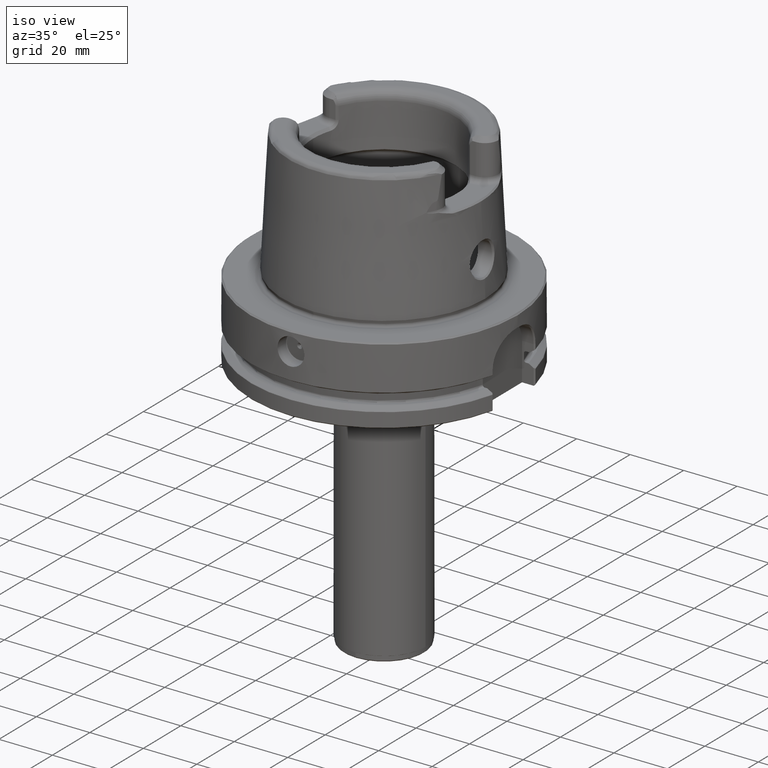
[diagram: clean part render]
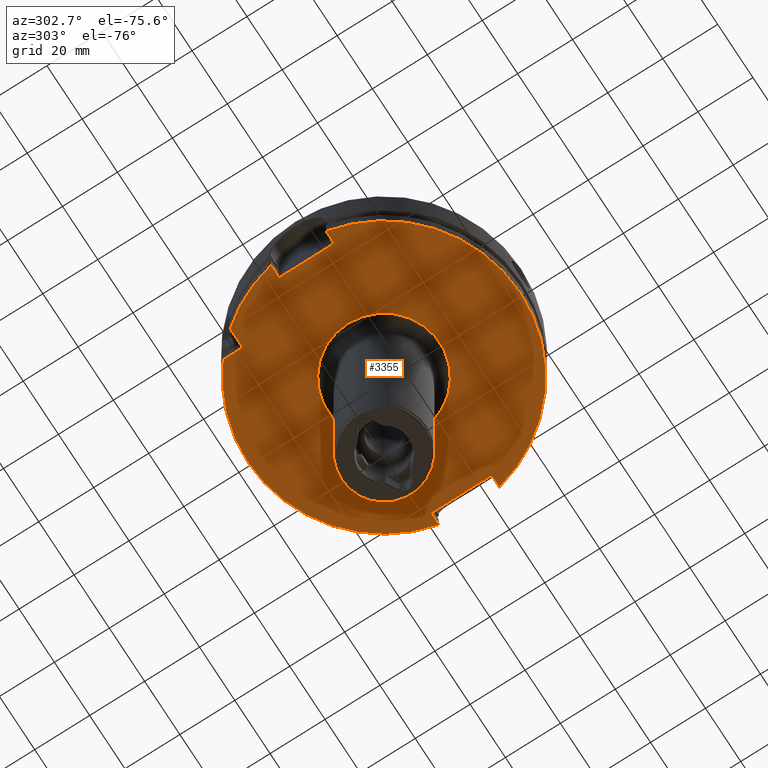
[diagram: tour spotlight — one face highlighted and labeled with its STEP entity id]
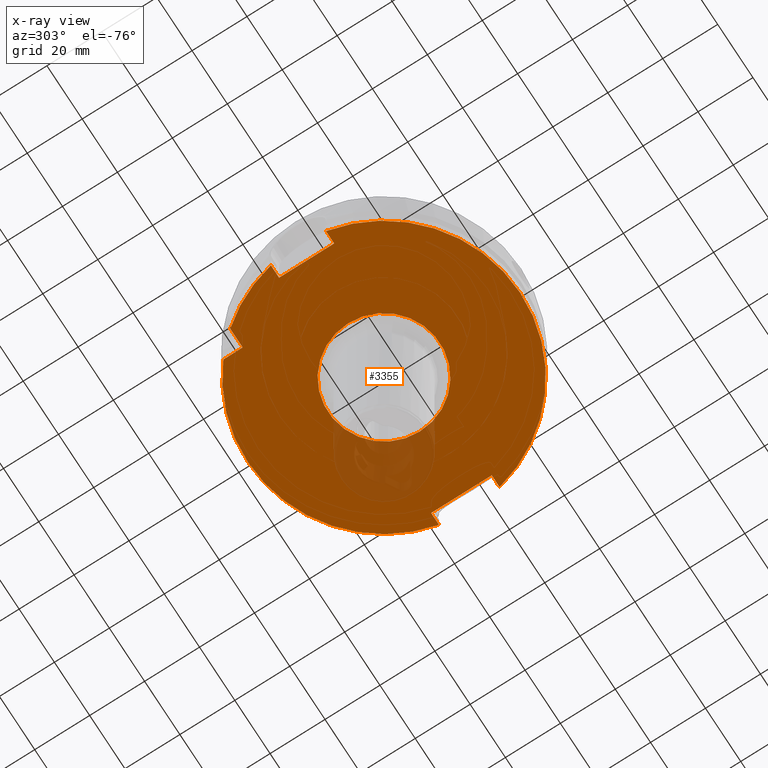
[diagram: x-ray of the same camera — body ghosted, this tour face saturated]
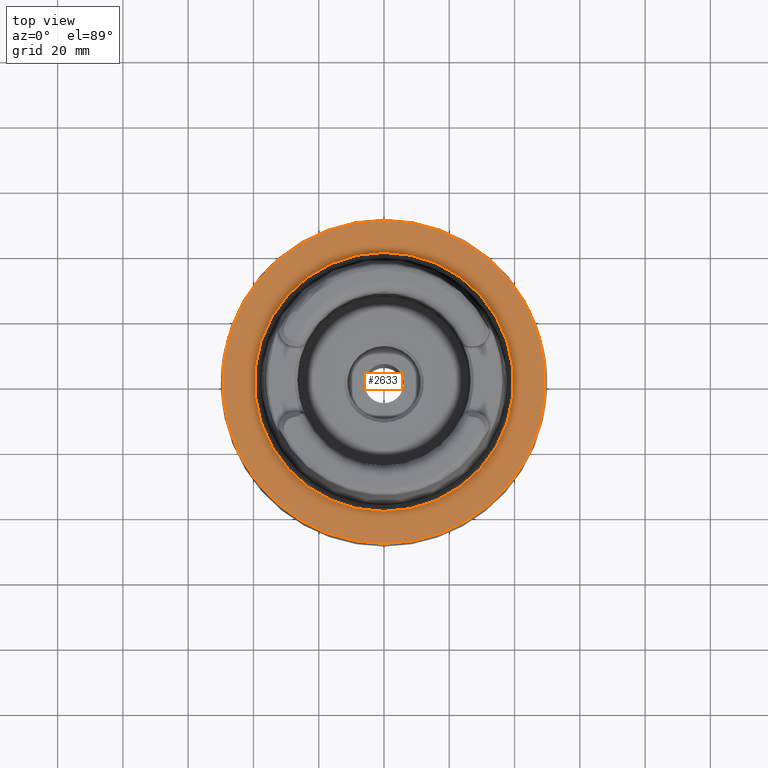
[diagram: tour spotlight — one face highlighted and labeled with its STEP entity id]
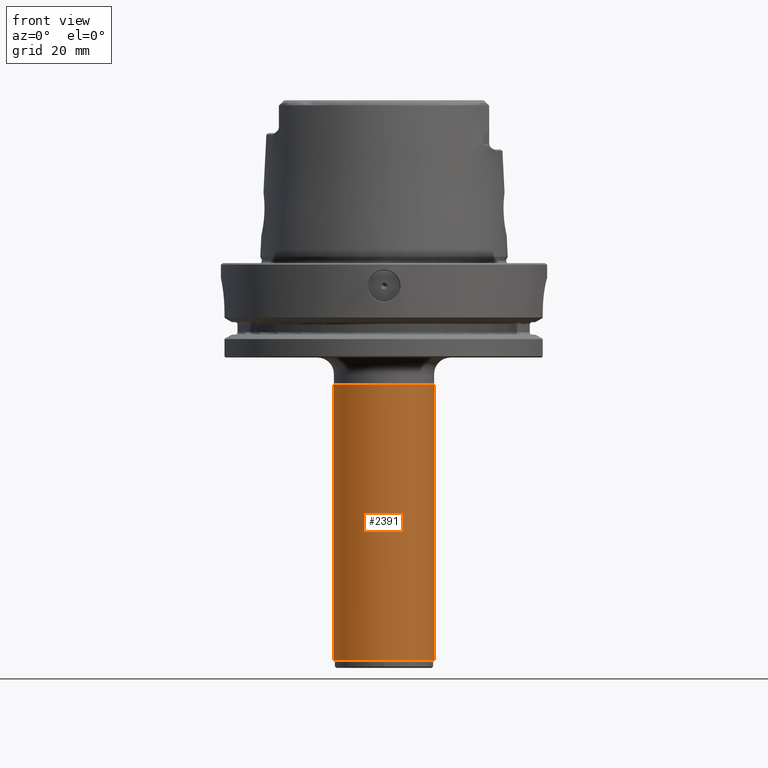
[diagram: tour spotlight — one face highlighted and labeled with its STEP entity id]
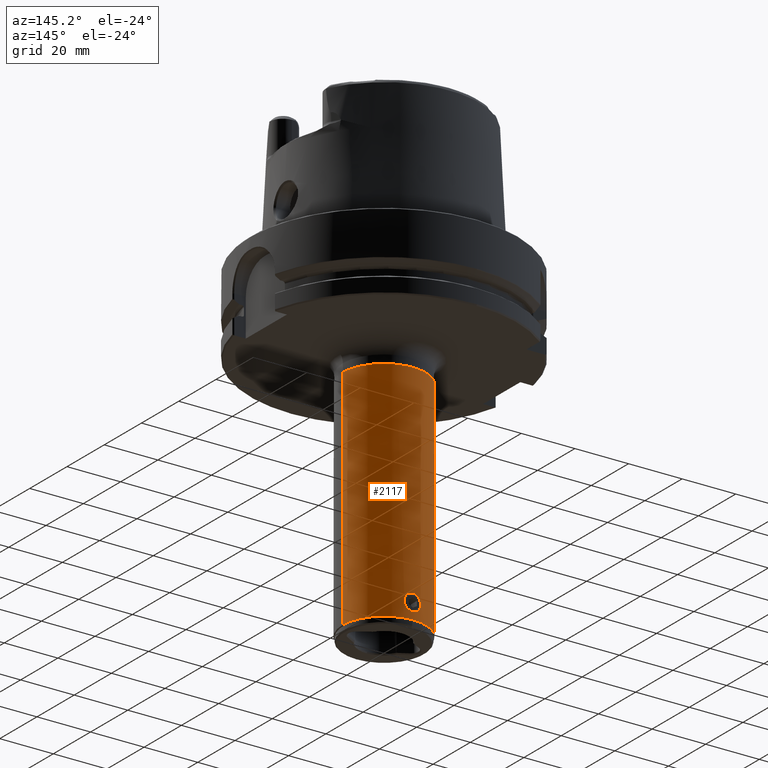
[diagram: tour spotlight — one face highlighted and labeled with its STEP entity id]
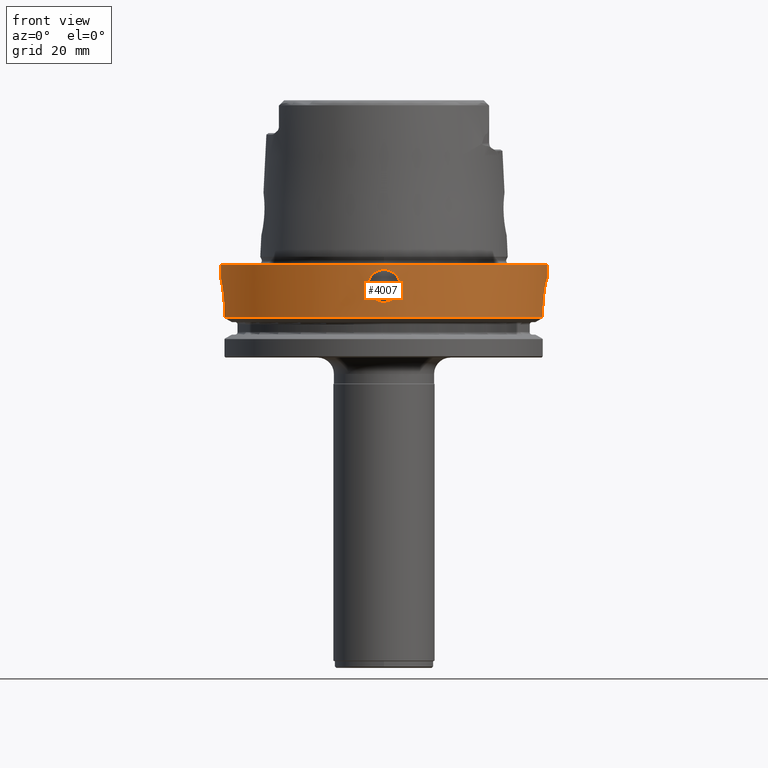
[diagram: tour spotlight — one face highlighted and labeled with its STEP entity id]
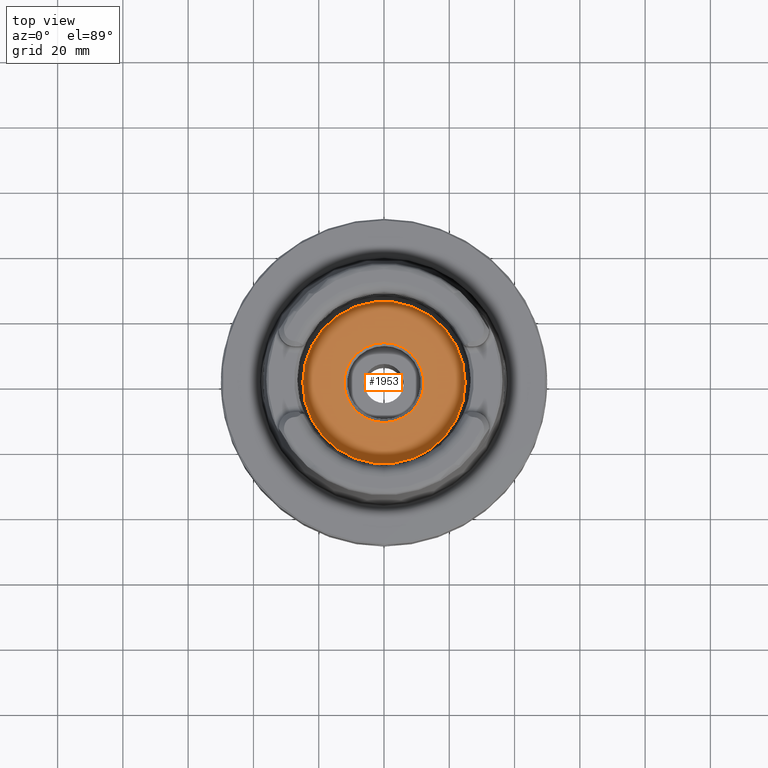
[diagram: tour spotlight — one face highlighted and labeled with its STEP entity id]
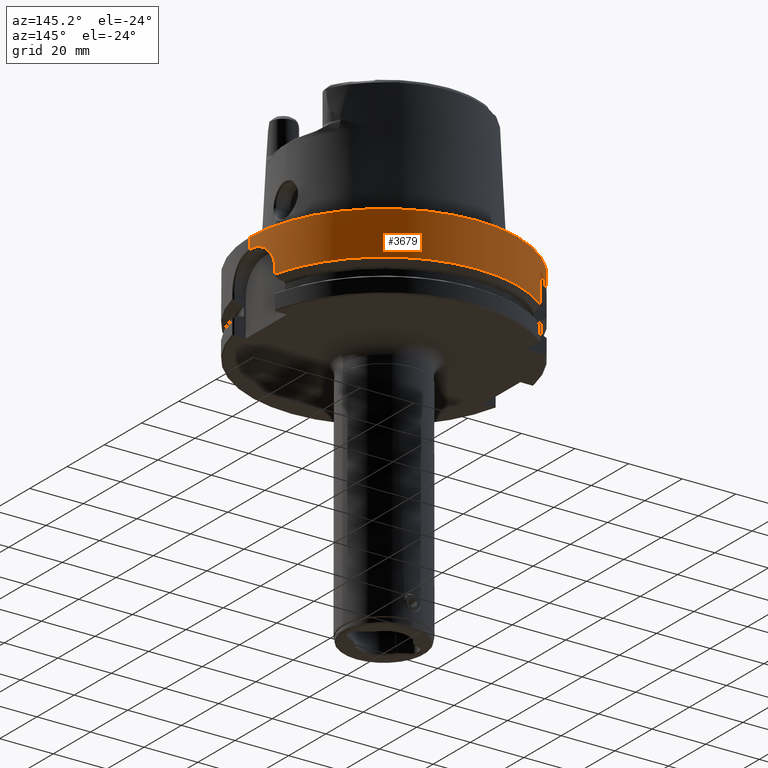
[diagram: tour spotlight — one face highlighted and labeled with its STEP entity id]
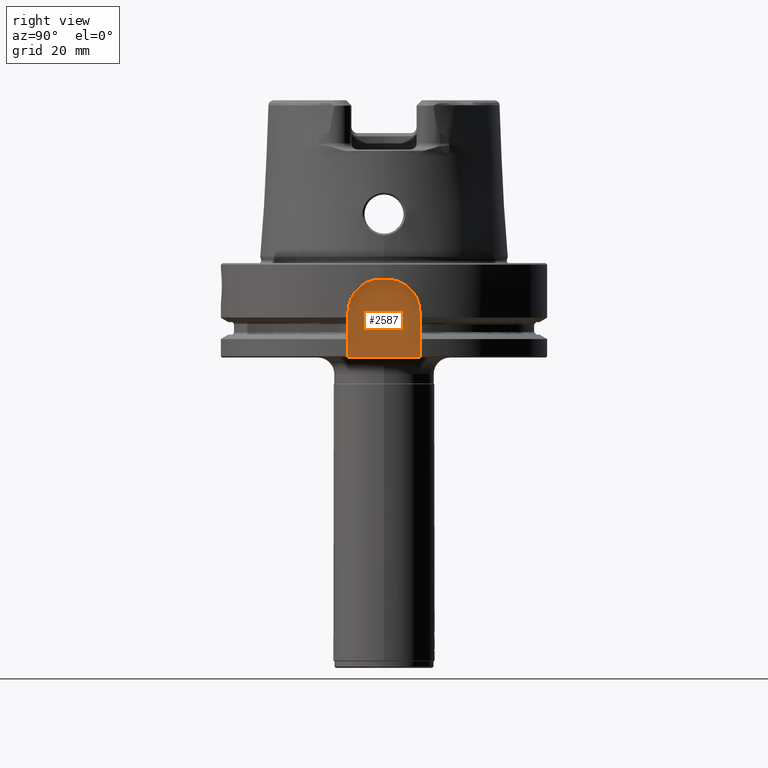
[diagram: tour spotlight — one face highlighted and labeled with its STEP entity id]
A machine part: a face-by-face anatomy tour. The part has 273 B-rep faces; the first image is the clean iso view, then the 8 largest visible faces are spotlighted one at a time (largest first), each with its STEP entity span.

Face 1 — auxiliary view, entity #3355. An x-ray twin of the same camera follows (body ghosted, this face saturated) — the face is partly hidden behind the body. In plain terms, the highlighted planar face has unit normal (0, -0, 1).
Definition (entity closure, byte-faithful):
#1497=VERTEX_POINT('NONE',#4357);
#1551=VERTEX_POINT('NONE',#4418);
#1871=VERTEX_POINT('NONE',#4765);
#1963=VERTEX_POINT('NONE',#4872);
#1979=EDGE_CURVE('NONE',#2561,#3631,#4889,.T.);
#2023=EDGE_CURVE('NONE',#2681,#4113,#4940,.F.);
#2033=EDGE_CURVE('NONE',#2561,#2681,#4950,.F.);
#2151=EDGE_CURVE('NONE',#3127,#2621,#5076,.T.);
#2181=EDGE_CURVE('NONE',#4149,#3625,#5109,.F.);
#2335=VERTEX_POINT('NONE',#5283);
#2371=EDGE_CURVE('NONE',#2971,#4113,#5323,.T.);
#2413=EDGE_CURVE('NONE',#3595,#1963,#5367,.F.);
#2561=VERTEX_POINT('NONE',#5531);
#2621=VERTEX_POINT('NONE',#5599);
#2679=EDGE_CURVE('NONE',#2733,#2971,#5661,.T.);
#2681=VERTEX_POINT('NONE',#5663);
#2699=EDGE_CURVE('NONE',#1497,#2335,#5683,.T.);
#2733=VERTEX_POINT('',#5718);
#2795=EDGE_CURVE('NONE',#1871,#4149,#5788,.T.);
#2877=VERTEX_POINT('NONE',#5879);
#2881=EDGE_CURVE('NONE',#3631,#1963,#5883,.T.);
#2971=VERTEX_POINT('NONE',#5980);
#3127=VERTEX_POINT('NONE',#6152);
#3355=ADVANCED_FACE('NONE',(#6404,#6405),#6406,.F.);
#3595=VERTEX_POINT('NONE',#6670);
#3625=VERTEX_POINT('NONE',#6701);
#3631=VERTEX_POINT('NONE',#6708);
#3633=EDGE_CURVE('NONE',#3127,#2877,#6710,.F.);
#3799=EDGE_CURVE('NONE',#3625,#2621,#6893,.T.);
#3835=EDGE_CURVE('NONE',#1551,#1871,#6936,.T.);
#4011=EDGE_CURVE('NONE',#3595,#1551,#7126,.T.);
#4097=EDGE_CURVE('NONE',#2335,#1497,#7219,.T.);
#4113=VERTEX_POINT('NONE',#7237);
#4149=VERTEX_POINT('NONE',#7274);
#4245=EDGE_CURVE('NONE',#2877,#2733,#7379,.T.);
#4357=CARTESIAN_POINT('',(-20.35,0.0,-28.95));
#4418=CARTESIAN_POINT('',(0.0,49.575,-28.95));
#4765=CARTESIAN_POINT('',(48.3133574001699,11.113060862042,-28.95));
#4872=CARTESIAN_POINT('',(-31.35,31.35,-28.95));
#4889=CIRCLE('',#8824,49.575);
#4940=LINE('',#8890,#8891);
#4950=LINE('',#8919,#8920);
#5076=LINE('',#9184,#9185);
#5109=LINE('',#9284,#9285);
#5283=CARTESIAN_POINT('',(20.35,-2.49215623626486E-015,-28.95));
#5323=LINE('',#9751,#9752);
#5367=LINE('',#9875,#9876);
#5531=CARTESIAN_POINT('',(-48.5516239069303,10.021,-28.95));
#5599=CARTESIAN_POINT('',(43.9,-11.021,-28.95));
#5661=CIRCLE('',#10538,49.575);
#5663=CARTESIAN_POINT('',(-43.9,10.021,-28.95));
#5683=CIRCLE('',#10612,20.35);
#5718=CARTESIAN_POINT('',(6.06176014331799E-015,-49.575,-28.95));
#5788=LINE('',#10902,#10903);
#5879=CARTESIAN_POINT('',(48.3133574001699,-11.113060862042,-28.95));
#5883=LINE('',#11037,#11038);
#5980=CARTESIAN_POINT('',(-48.5516239069302,-10.021,-28.95));
#6152=CARTESIAN_POINT('',(48.2212965381279,-11.021,-28.95));
#6404=FACE_OUTER_BOUND('',#12560,.T.);
#6405=FACE_BOUND('',#12561,.T.);
#6406=PLANE('',#12562);
#6670=CARTESIAN_POINT('',(-31.35,38.403881639751,-28.95));
#6701=CARTESIAN_POINT('',(43.9,11.021,-28.95));
#6708=CARTESIAN_POINT('',(-38.403881639751,31.35,-28.95));
#6710=LINE('',#13322,#13323);
#6893=LINE('',#13855,#13856);
#6936=CIRCLE('',#13922,49.575);
#7126=CIRCLE('',#14419,49.575);
#7219=CIRCLE('',#14771,20.35);
#7237=CARTESIAN_POINT('',(-43.9,-10.021,-28.95));
#7274=CARTESIAN_POINT('',(48.2212965381279,11.021,-28.95));
#7379=CIRCLE('',#15207,49.575);
#8824=AXIS2_PLACEMENT_3D('',#16019,#16020,#16021);
#8890=CARTESIAN_POINT('',(-43.9,-25.052,-28.95));
#8891=VECTOR('',#16101,1.0);
#8919=CARTESIAN_POINT('',(-31.95,10.021,-28.95));
#8920=VECTOR('',#16105,1.0);
#9184=CARTESIAN_POINT('',(30.95,-11.021,-28.95));
#9185=VECTOR('',#16212,1.0);
#9284=CARTESIAN_POINT('',(30.95,11.021,-28.95));
#9285=VECTOR('',#16267,1.0);
#9751=CARTESIAN_POINT('',(-31.95,-10.021,-28.95));
#9752=VECTOR('',#16559,1.0);
#9875=CARTESIAN_POINT('',(-31.35,-4.3875,-28.95));
#9876=VECTOR('',#16597,1.0);
#10538=AXIS2_PLACEMENT_3D('',#16916,#16917,#16918);
#10612=AXIS2_PLACEMENT_3D('',#16941,#16942,#16943);
#10902=CARTESIAN_POINT('',(21.1544235902855,-16.0458729478429,-28.95));
#10903=VECTOR('',#17051,1.0);
#11037=CARTESIAN_POINT('',(-33.225,31.35,-28.95));
#11038=VECTOR('',#17146,1.0);
#12560=EDGE_LOOP('',(#17698,#17699,#17700,#17701,#17702,#17703,#17704,#17705,#17706,#17707,#17708,#17709,#17710,#17711,#17712));
#12561=EDGE_LOOP('',(#17713,#17714));
#12562=AXIS2_PLACEMENT_3D('',#17715,#17716,#17717);
#13322=CARTESIAN_POINT('',(46.2169235902853,-9.01662705215734,-28.95));
#13323=VECTOR('',#18030,1.0);
#13855=CARTESIAN_POINT('',(43.9,-25.573,-28.95));
#13856=VECTOR('',#18261,1.0);
#13922=AXIS2_PLACEMENT_3D('',#18347,#18348,#18349);
#14419=AXIS2_PLACEMENT_3D('',#18530,#18531,#18532);
#14771=AXIS2_PLACEMENT_3D('',#18616,#18617,#18618);
#15207=AXIS2_PLACEMENT_3D('',#18765,#18766,#18767);
#16019=CARTESIAN_POINT('',(0.0,-5.88862303229827E-019,-28.95));
#16020=DIRECTION('',(0.0,3.54736327246885E-020,-1.0));
#16021=DIRECTION('',(0.0,1.0,3.54736327246885E-020));
#16101=DIRECTION('',(-0.0,1.0,3.54736327246885E-020));
#16105=DIRECTION('',(-1.0,0.0,-0.0));
#16212=DIRECTION('',(-1.0,0.0,0.0));
#16267=DIRECTION('',(1.0,0.0,0.0));
#16559=DIRECTION('',(1.0,0.0,0.0));
#16597=DIRECTION('',(-0.0,1.0,3.54736327246885E-020));
#16916=CARTESIAN_POINT('',(0.0,-5.88862303229828E-019,-28.95));
#16917=DIRECTION('',(0.0,3.54736327246885E-020,-1.0));
#16918=DIRECTION('',(0.0,1.0,3.54736327246885E-020));
#16941=CARTESIAN_POINT('',(0.0,-1.77368163623443E-019,-28.95));
#16942=DIRECTION('',(0.0,-3.54736327246885E-020,1.0));
#16943=DIRECTION('',(-1.0,0.0,0.0));
#17051=DIRECTION('',(-0.707106781186541,-0.707106781186554,-2.50836462529485E-020));
#17146=DIRECTION('',(1.0,0.0,0.0));
#17698=ORIENTED_EDGE('',*,*,#2413,.F.);
#17699=ORIENTED_EDGE('',*,*,#4011,.T.);
#17700=ORIENTED_EDGE('',*,*,#3835,.T.);
#17701=ORIENTED_EDGE('',*,*,#2795,.T.);
#17702=ORIENTED_EDGE('',*,*,#2181,.T.);
#17703=ORIENTED_EDGE('',*,*,#3799,.T.);
#17704=ORIENTED_EDGE('',*,*,#2151,.F.);
#17705=ORIENTED_EDGE('',*,*,#3633,.T.);
#17706=ORIENTED_EDGE('',*,*,#4245,.T.);
#17707=ORIENTED_EDGE('',*,*,#2679,.T.);
#17708=ORIENTED_EDGE('',*,*,#2371,.T.);
#17709=ORIENTED_EDGE('',*,*,#2023,.F.);
#17710=ORIENTED_EDGE('',*,*,#2033,.F.);
#17711=ORIENTED_EDGE('',*,*,#1979,.T.);
#17712=ORIENTED_EDGE('',*,*,#2881,.T.);
#17713=ORIENTED_EDGE('',*,*,#2699,.T.);
#17714=ORIENTED_EDGE('',*,*,#4097,.T.);
#17715=CARTESIAN_POINT('',(0.0,-50.125,-28.95));
#17716=DIRECTION('',(0.0,-3.54736327246885E-020,1.0));
#17717=DIRECTION('',(-1.0,0.0,0.0));
#18030=DIRECTION('',(-0.707106781186548,0.707106781186548,2.50836462529482E-020));
#18261=DIRECTION('',(0.0,-1.0,-3.54736327246885E-020));
#18347=CARTESIAN_POINT('',(0.0,-5.88862303229828E-019,-28.95));
#18348=DIRECTION('',(0.0,3.54736327246885E-020,-1.0));
#18349=DIRECTION('',(0.0,1.0,3.54736327246885E-020));
#18530=CARTESIAN_POINT('',(0.0,-5.88862303229828E-019,-28.95));
#18531=DIRECTION('',(0.0,3.54736327246885E-020,-1.0));
#18532=DIRECTION('',(0.0,1.0,3.54736327246885E-020));
#18616=CARTESIAN_POINT('',(0.0,-1.77368163623443E-019,-28.95));
#18617=DIRECTION('',(0.0,-3.54736327246885E-020,1.0));
#18618=DIRECTION('',(-1.0,0.0,0.0));
#18765=CARTESIAN_POINT('',(0.0,-5.88862303229828E-019,-28.95));
#18766=DIRECTION('',(0.0,3.54736327246885E-020,-1.0));
#18767=DIRECTION('',(0.0,1.0,3.54736327246885E-020));

Face 2 — top view, entity #2633. In plain terms, the highlighted planar face has unit normal (0, 0, -1).
Definition (entity closure, byte-faithful):
#1709=EDGE_CURVE('NONE',#3903,#4221,#4590,.T.);
#1729=EDGE_CURVE('NONE',#2657,#2809,#4611,.T.);
#2633=ADVANCED_FACE('NONE',(#5611,#5612),#5613,.F.);
#2657=VERTEX_POINT('NONE',#5638);
#2809=VERTEX_POINT('NONE',#5802);
#3647=EDGE_CURVE('NONE',#2809,#2657,#6724,.F.);
#3903=VERTEX_POINT('NONE',#7007);
#4145=EDGE_CURVE('NONE',#4221,#3903,#7270,.T.);
#4221=VERTEX_POINT('NONE',#7353);
#4590=CIRCLE('',#8135,49.495);
#4611=CIRCLE('',#8195,39.6966651994798);
#5611=FACE_OUTER_BOUND('',#10370,.T.);
#5612=FACE_BOUND('',#10371,.T.);
#5613=PLANE('',#10372);
#5638=CARTESIAN_POINT('',(-4.86143939733671E-015,-39.6966651994798,-6.04442711160669E-015));
#5802=CARTESIAN_POINT('',(0.0,39.6966651994798,-6.04442711160669E-015));
#6724=CIRCLE('',#13371,39.6966651994798);
#7007=CARTESIAN_POINT('',(-6.09016853215979E-015,49.495,-6.04442711160669E-015));
#7270=CIRCLE('',#14961,49.495);
#7353=CARTESIAN_POINT('',(0.0,-49.495,-6.04442711160669E-015));
#8135=AXIS2_PLACEMENT_3D('',#15675,#15676,#15677);
#8195=AXIS2_PLACEMENT_3D('',#15699,#15700,#15701);
#10370=EDGE_LOOP('',(#16873,#16874));
#10371=EDGE_LOOP('',(#16875,#16876));
#10372=AXIS2_PLACEMENT_3D('',#16877,#16878,#16879);
#13371=AXIS2_PLACEMENT_3D('',#18034,#18035,#18036);
#14961=AXIS2_PLACEMENT_3D('',#18647,#18648,#18649);
#15675=CARTESIAN_POINT('',(0.0,-1.60057030853794E-018,-6.03683769639929E-015));
#15676=DIRECTION('',(0.0,0.0,1.0));
#15677=DIRECTION('',(0.0,-1.0,0.0));
#15699=CARTESIAN_POINT('',(0.0,-1.60057030853794E-018,-6.03683769639929E-015));
#15700=DIRECTION('',(0.0,0.0,1.0));
#15701=DIRECTION('',(0.0,1.0,-0.0));
#16873=ORIENTED_EDGE('',*,*,#4145,.T.);
#16874=ORIENTED_EDGE('',*,*,#1709,.T.);
#16875=ORIENTED_EDGE('',*,*,#3647,.F.);
#16876=ORIENTED_EDGE('',*,*,#1729,.F.);
#16877=CARTESIAN_POINT('',(0.0,-38.4830790180554,-6.04092879777189E-015));
#16878=DIRECTION('',(0.0,0.0,-1.0));
#16879=DIRECTION('',(0.0,-1.0,0.0));
#18034=CARTESIAN_POINT('',(0.0,-1.60057030853794E-018,-6.03683769639929E-015));
#18035=DIRECTION('',(0.0,0.0,-1.0));
#18036=DIRECTION('',(0.0,1.0,0.0));
#18647=CARTESIAN_POINT('',(0.0,-1.60057030853794E-018,-6.03683769639929E-015));
#18648=DIRECTION('',(0.0,0.0,1.0));
#18649=DIRECTION('',(0.0,-1.0,0.0));

Face 3 — front view, entity #2391. In plain terms, the highlighted cylindrical surface (partial cylindrical patch) has radius 15.5 mm, axis along (-0, -0, 1).
Definition (entity closure, byte-faithful):
#1585=VERTEX_POINT('NONE',#4454);
#1649=VERTEX_POINT('NONE',#4523);
#1955=EDGE_CURVE('NONE',#1585,#3745,#4863,.T.);
#2061=EDGE_CURVE('NONE',#2489,#3745,#4979,.F.);
#2391=ADVANCED_FACE('NONE',(#5344),#5345,.T.);
#2489=VERTEX_POINT('NONE',#5452);
#2785=EDGE_CURVE('NONE',#1649,#1585,#5777,.T.);
#3221=VERTEX_POINT('NONE',#6254);
#3719=EDGE_CURVE('NONE',#3221,#2489,#6805,.T.);
#3745=VERTEX_POINT('NONE',#6834);
#4161=EDGE_CURVE('NONE',#3221,#1649,#7286,.T.);
#4454=CARTESIAN_POINT('',(15.5,-1.8982025386784E-015,-121.797927405784));
#4523=CARTESIAN_POINT('',(-5.6016163290747E-014,-15.5,-121.797927405784));
#4863=LINE('',#8739,#8740);
#4979=CIRCLE('',#8976,15.5);
#5344=FACE_OUTER_BOUND('',#9783,.T.);
#5345=CYLINDRICAL_SURFACE('',#9784,15.5);
#5452=CARTESIAN_POINT('',(-15.5,-1.8982025386784E-015,-37.1));
#5777=CIRCLE('',#10889,15.5);
#6254=CARTESIAN_POINT('',(-15.5,0.0,-121.797927405784));
#6805=LINE('',#13526,#13527);
#6834=CARTESIAN_POINT('',(15.5,0.0,-37.1));
#7286=CIRCLE('',#15017,15.5);
#8739=CARTESIAN_POINT('',(15.5,-1.8982025386784E-015,47.843504125098));
#8740=VECTOR('',#15998,1000.0);
#8976=AXIS2_PLACEMENT_3D('',#16121,#16122,#16123);
#9783=EDGE_LOOP('',(#16579,#16580,#16581,#16582,#16583));
#9784=AXIS2_PLACEMENT_3D('',#16584,#16585,#16586);
#10889=AXIS2_PLACEMENT_3D('',#17037,#17038,#17039);
#13526=CARTESIAN_POINT('',(-15.5,0.0,47.843504125098));
#13527=VECTOR('',#18164,1000.0);
#15017=AXIS2_PLACEMENT_3D('',#18654,#18655,#18656);
#15998=DIRECTION('',(0.0,0.0,1.0));
#16121=CARTESIAN_POINT('',(0.0,0.0,-37.1));
#16122=DIRECTION('',(0.0,0.0,-1.0));
#16123=DIRECTION('',(-1.0,0.0,0.0));
#16579=ORIENTED_EDGE('',*,*,#2785,.T.);
#16580=ORIENTED_EDGE('',*,*,#1955,.T.);
#16581=ORIENTED_EDGE('',*,*,#2061,.F.);
#16582=ORIENTED_EDGE('',*,*,#3719,.F.);
#16583=ORIENTED_EDGE('',*,*,#4161,.T.);
#16584=CARTESIAN_POINT('',(0.0,0.0,47.843504125098));
#16585=DIRECTION('',(-0.0,-0.0,1.0));
#16586=DIRECTION('',(-1.0,0.0,0.0));
#17037=CARTESIAN_POINT('',(0.0,0.0,-121.797927405784));
#17038=DIRECTION('',(0.0,0.0,1.0));
#17039=DIRECTION('',(-1.0,0.0,0.0));
#18164=DIRECTION('',(0.0,0.0,1.0));
#18654=CARTESIAN_POINT('',(0.0,0.0,-121.797927405784));
#18655=DIRECTION('',(0.0,0.0,1.0));
#18656=DIRECTION('',(-1.0,0.0,0.0));

Face 4 — auxiliary view, entity #2117. In plain terms, the highlighted cylindrical surface (partial cylindrical patch) has radius 15.5 mm, axis along (-0, -0, 1).
Definition (entity closure, byte-faithful):
#1585=VERTEX_POINT('NONE',#4454);
#1955=EDGE_CURVE('NONE',#1585,#3745,#4863,.T.);
#2031=VERTEX_POINT('NONE',#4948);
#2117=ADVANCED_FACE('NONE',(#5037,#5038),#5039,.T.);
#2139=EDGE_CURVE('NONE',#2487,#3221,#5063,.F.);
#2487=VERTEX_POINT('NONE',#5450);
#2489=VERTEX_POINT('NONE',#5452);
#3029=EDGE_CURVE('NONE',#2031,#4171,#6042,.F.);
#3063=EDGE_CURVE('NONE',#3745,#2489,#6079,.T.);
#3163=EDGE_CURVE('NONE',#1585,#2487,#6188,.F.);
#3221=VERTEX_POINT('NONE',#6254);
#3719=EDGE_CURVE('NONE',#3221,#2489,#6805,.T.);
#3737=EDGE_CURVE('NONE',#4171,#2031,#6825,.F.);
#3745=VERTEX_POINT('NONE',#6834);
#4171=VERTEX_POINT('NONE',#7297);
#4454=CARTESIAN_POINT('',(15.5,-1.8982025386784E-015,-121.797927405784));
#4863=LINE('',#8739,#8740);
#4948=CARTESIAN_POINT('',(5.37383206755547E-014,15.5,-112.85));
#5037=FACE_OUTER_BOUND('',#9125,.T.);
#5038=FACE_BOUND('',#9126,.T.);
#5039=CYLINDRICAL_SURFACE('',#9127,15.5);
#5063=CIRCLE('',#9163,15.5);
#5450=CARTESIAN_POINT('',(5.41179607520686E-014,15.5,-121.797927405784));
#5452=CARTESIAN_POINT('',(-15.5,-1.8982025386784E-015,-37.1));
#6042=B_SPLINE_CURVE_WITH_KNOTS('',3,(#11451,#11452,#11453,#11454,#11455,#11456,#11457,#11458,#11459,#11460,#11461,#11462,#11463,#11464,#11465,#11466,#11467,#11468,#11469,#11470,#11471,#11472,#11473,#11474,#11475,#11476,#11477,#11478,#11479,#11480,#11481,#11482,#11483,#11484,#11485,#11486,#11487,#11488,#11489,#11490,#11491,#11492,#11493,#11494,#11495,#11496),.UNSPECIFIED.,.F.,.F.,(4,2,2,2,2,2,2,2,2,2,2,2,2,2,2,2,2,2,2,2,2,2,4),(2.92788042022872,3.51343025393823,4.09898008764774,4.68452992135725,5.27007975506675,5.85562958877626,6.44117942248577,7.02672925619528,7.61231190282508,8.19789454945489,8.78347719608469,9.36905984271449,9.9546424893443,10.5402251359741,11.1258077826039,11.7113904292337,12.2969402629432,12.8824900966527,13.4680399303622,14.0535897640717,14.6391395977813,15.2246894314908,15.8102392652003),.UNSPECIFIED.);
#6079=CIRCLE('',#11676,15.5);
#6188=CIRCLE('',#12047,15.5);
#6254=CARTESIAN_POINT('',(-15.5,0.0,-121.797927405784));
#6805=LINE('',#13526,#13527);
#6825=B_SPLINE_CURVE_WITH_KNOTS('',3,(#13555,#13556,#13557,#13558,#13559,#13560,#13561,#13562,#13563,#13564,#13565,#13566,#13567,#13568,#13569,#13570,#13571,#13572,#13573,#13574,#13575,#13576,#13577,#13578,#13579,#13580,#13581,#13582,#13583,#13584,#13585,#13586,#13587,#13588,#13589,#13590,#13591,#13592,#13593,#13594,#13595,#13596,#13597,#13598,#13599,#13600,#13601),.UNSPECIFIED.,.F.,.F.,(4,2,2,2,2,2,2,2,2,2,2,3,2,2,2,2,2,2,2,2,2,2,4),(-6.44117942248577,-5.85562958877626,-5.27007975506675,-4.68452992135725,-4.09898008764774,-3.51343025393823,-2.92788042022872,-2.34233058651921,-1.75674793988941,-1.17116529325961,-0.585582646629803,0.0,0.585582646629803,1.17116529325961,1.75674793988941,2.34233058651921,2.92788042022872,3.51343025393823,4.09898008764774,4.68452992135725,5.27007975506675,5.85562958877626,6.44117942248577),.UNSPECIFIED.);
#6834=CARTESIAN_POINT('',(15.5,0.0,-37.1));
#7297=CARTESIAN_POINT('',(5.40017603684696E-014,15.5,-119.05));
#8739=CARTESIAN_POINT('',(15.5,-1.8982025386784E-015,47.843504125098));
#8740=VECTOR('',#15998,1000.0);
#9125=EDGE_LOOP('',(#16154,#16155,#16156,#16157,#16158));
#9126=EDGE_LOOP('',(#16159,#16160));
#9127=AXIS2_PLACEMENT_3D('',#16161,#16162,#16163);
#9163=AXIS2_PLACEMENT_3D('',#16194,#16195,#16196);
#11451=CARTESIAN_POINT('',(-1.73053299497892,15.4030924022837,-118.522013910011));
#11452=CARTESIAN_POINT('',(-1.561514319576,15.4220816017817,-118.635735065849));
#11453=CARTESIAN_POINT('',(-1.37864586449787,15.4397532832957,-118.734247614324));
#11454=CARTESIAN_POINT('',(-0.996909454068438,15.4690923264716,-118.892595925396));
#11455=CARTESIAN_POINT('',(-0.797727571773132,15.480757825878,-118.952557574723));
#11456=CARTESIAN_POINT('',(-0.396866504697267,15.4962166066334,-119.031268934347));
#11457=CARTESIAN_POINT('',(-0.195183277903116,15.5,-119.05));
#11458=CARTESIAN_POINT('',(0.195183277903223,15.5,-119.05));
#11459=CARTESIAN_POINT('',(0.39686650469737,15.4962166066334,-119.031268934347));
#11460=CARTESIAN_POINT('',(0.797727571773238,15.480757825878,-118.952557574723));
#11461=CARTESIAN_POINT('',(0.996909454068545,15.4690923264716,-118.892595925396));
#11462=CARTESIAN_POINT('',(1.37864586449798,15.4397532832957,-118.734247614324));
#11463=CARTESIAN_POINT('',(1.56151431957612,15.4220816017817,-118.635735065849));
#11464=CARTESIAN_POINT('',(1.89955167038194,15.3841032027856,-118.408292754172));
#11465=CARTESIAN_POINT('',(2.0547144190391,15.363833809268,-118.279347624318));
#11466=CARTESIAN_POINT('',(2.32935531923694,15.324599394954,-118.00470672412));
#11467=CARTESIAN_POINT('',(2.45830130164736,15.3042495074566,-117.84954040477));
#11468=CARTESIAN_POINT('',(2.68574015614679,15.2659784517932,-117.511505315889));
#11469=CARTESIAN_POINT('',(2.78424876312522,15.2480965497249,-117.328642688995));
#11470=CARTESIAN_POINT('',(2.94259269995558,15.2183323000229,-116.9469176358));
#11471=CARTESIAN_POINT('',(3.00255393971665,15.2064552352244,-116.747741114534));
#11472=CARTESIAN_POINT('',(3.08126696905547,15.1907012625467,-116.34688148277));
#11473=CARTESIAN_POINT('',(3.10000000000006,15.1868364052557,-116.145194215543));
#11474=CARTESIAN_POINT('',(3.10000000000006,15.1868364052557,-115.754805784457));
#11475=CARTESIAN_POINT('',(3.08126696905547,15.1907012625467,-115.55311851723));
#11476=CARTESIAN_POINT('',(3.00255393971666,15.2064552352244,-115.152258885466));
#11477=CARTESIAN_POINT('',(2.9425926999556,15.2183323000228,-114.9530823642));
#11478=CARTESIAN_POINT('',(2.78424876312524,15.2480965497249,-114.571357311005));
#11479=CARTESIAN_POINT('',(2.68574015614682,15.2659784517932,-114.388494684111));
#11480=CARTESIAN_POINT('',(2.45830130164738,15.3042495074566,-114.05045959523));
#11481=CARTESIAN_POINT('',(2.32935531923694,15.324599394954,-113.89529327588));
#11482=CARTESIAN_POINT('',(2.0547144190391,15.363833809268,-113.620652375682));
#11483=CARTESIAN_POINT('',(1.89955167038194,15.3841032027856,-113.491707245828));
#11484=CARTESIAN_POINT('',(1.56151431957612,15.4220816017817,-113.264264934151));
#11485=CARTESIAN_POINT('',(1.37864586449798,15.4397532832957,-113.165752385676));
#11486=CARTESIAN_POINT('',(0.996909454068552,15.4690923264716,-113.007404074604));
#11487=CARTESIAN_POINT('',(0.797727571773244,15.480757825878,-112.947442425277));
#11488=CARTESIAN_POINT('',(0.396866504697374,15.4962166066334,-112.868731065653));
#11489=CARTESIAN_POINT('',(0.195183277903224,15.5,-112.85));
#11490=CARTESIAN_POINT('',(-0.195183277903115,15.5,-112.85));
#11491=CARTESIAN_POINT('',(-0.396866504697265,15.4962166066334,-112.868731065653));
#11492=CARTESIAN_POINT('',(-0.797727571773135,15.480757825878,-112.947442425277));
#11493=CARTESIAN_POINT('',(-0.996909454068443,15.4690923264716,-113.007404074604));
#11494=CARTESIAN_POINT('',(-1.37864586449787,15.4397532832957,-113.165752385676));
#11495=CARTESIAN_POINT('',(-1.56151431957601,15.4220816017817,-113.264264934151));
#11496=CARTESIAN_POINT('',(-1.73053299497893,15.4030924022837,-113.377986089989));
#11676=AXIS2_PLACEMENT_3D('',#17328,#17329,#17330);
#12047=AXIS2_PLACEMENT_3D('',#17428,#17429,#17430);
#13526=CARTESIAN_POINT('',(-15.5,0.0,47.843504125098));
#13527=VECTOR('',#18164,1000.0);
#13555=CARTESIAN_POINT('',(1.73053299497903,15.4030924022837,-113.377986089989));
#13556=CARTESIAN_POINT('',(1.56151431957612,15.4220816017817,-113.264264934151));
#13557=CARTESIAN_POINT('',(1.37864586449798,15.4397532832957,-113.165752385676));
#13558=CARTESIAN_POINT('',(0.996909454068552,15.4690923264716,-113.007404074604));
#13559=CARTESIAN_POINT('',(0.797727571773244,15.480757825878,-112.947442425277));
#13560=CARTESIAN_POINT('',(0.396866504697374,15.4962166066334,-112.868731065653));
#13561=CARTESIAN_POINT('',(0.195183277903224,15.5,-112.85));
#13562=CARTESIAN_POINT('',(-0.195183277903115,15.5,-112.85));
#13563=CARTESIAN_POINT('',(-0.396866504697265,15.4962166066334,-112.868731065653));
#13564=CARTESIAN_POINT('',(-0.797727571773135,15.480757825878,-112.947442425277));
#13565=CARTESIAN_POINT('',(-0.996909454068443,15.4690923264716,-113.007404074604));
#13566=CARTESIAN_POINT('',(-1.37864586449787,15.4397532832957,-113.165752385676));
#13567=CARTESIAN_POINT('',(-1.56151431957601,15.4220816017817,-113.264264934151));
#13568=CARTESIAN_POINT('',(-1.89955167038184,15.3841032027857,-113.491707245828));
#13569=CARTESIAN_POINT('',(-2.05471441903899,15.363833809268,-113.620652375682));
#13570=CARTESIAN_POINT('',(-2.32935531923684,15.324599394954,-113.89529327588));
#13571=CARTESIAN_POINT('',(-2.45830130164727,15.3042495074566,-114.05045959523));
#13572=CARTESIAN_POINT('',(-2.6857401561467,15.2659784517932,-114.388494684111));
#13573=CARTESIAN_POINT('',(-2.78424876312512,15.2480965497249,-114.571357311005));
#13574=CARTESIAN_POINT('',(-2.94259269995548,15.2183323000229,-114.9530823642));
#13575=CARTESIAN_POINT('',(-3.00255393971656,15.2064552352245,-115.152258885466));
#13576=CARTESIAN_POINT('',(-3.08126696905536,15.1907012625467,-115.55311851723));
#13577=CARTESIAN_POINT('',(-3.09999999999995,15.1868364052557,-115.754805784457));
#13578=CARTESIAN_POINT('',(-3.09999999999995,15.1868364052557,-115.95));
#13579=CARTESIAN_POINT('',(-3.09999999999995,15.1868364052557,-116.145194215543));
#13580=CARTESIAN_POINT('',(-3.08126696905536,15.1907012625467,-116.34688148277));
#13581=CARTESIAN_POINT('',(-3.00255393971655,15.2064552352245,-116.747741114534));
#13582=CARTESIAN_POINT('',(-2.94259269995547,15.2183323000229,-116.9469176358));
#13583=CARTESIAN_POINT('',(-2.78424876312511,15.2480965497249,-117.328642688995));
#13584=CARTESIAN_POINT('',(-2.68574015614669,15.2659784517932,-117.511505315889));
#13585=CARTESIAN_POINT('',(-2.45830130164726,15.3042495074566,-117.84954040477));
#13586=CARTESIAN_POINT('',(-2.32935531923684,15.324599394954,-118.00470672412));
#13587=CARTESIAN_POINT('',(-2.05471441903899,15.363833809268,-118.279347624318));
#13588=CARTESIAN_POINT('',(-1.89955167038182,15.3841032027857,-118.408292754172));
#13589=CARTESIAN_POINT('',(-1.561514319576,15.4220816017817,-118.635735065849));
#13590=CARTESIAN_POINT('',(-1.37864586449787,15.4397532832957,-118.734247614324));
#13591=CARTESIAN_POINT('',(-0.996909454068438,15.4690923264716,-118.892595925396));
#13592=CARTESIAN_POINT('',(-0.797727571773132,15.480757825878,-118.952557574723));
#13593=CARTESIAN_POINT('',(-0.396866504697267,15.4962166066334,-119.031268934347));
#13594=CARTESIAN_POINT('',(-0.195183277903116,15.5,-119.05));
#13595=CARTESIAN_POINT('',(0.195183277903223,15.5,-119.05));
#13596=CARTESIAN_POINT('',(0.39686650469737,15.4962166066334,-119.031268934347));
#13597=CARTESIAN_POINT('',(0.797727571773238,15.480757825878,-118.952557574723));
#13598=CARTESIAN_POINT('',(0.996909454068545,15.4690923264716,-118.892595925396));
#13599=CARTESIAN_POINT('',(1.37864586449798,15.4397532832957,-118.734247614324));
#13600=CARTESIAN_POINT('',(1.56151431957612,15.4220816017817,-118.635735065849));
#13601=CARTESIAN_POINT('',(1.73053299497903,15.4030924022837,-118.522013910011));
#15998=DIRECTION('',(0.0,0.0,1.0));
#16154=ORIENTED_EDGE('',*,*,#1955,.F.);
#16155=ORIENTED_EDGE('',*,*,#3163,.T.);
#16156=ORIENTED_EDGE('',*,*,#2139,.T.);
#16157=ORIENTED_EDGE('',*,*,#3719,.T.);
#16158=ORIENTED_EDGE('',*,*,#3063,.F.);
#16159=ORIENTED_EDGE('',*,*,#3737,.F.);
#16160=ORIENTED_EDGE('',*,*,#3029,.F.);
#16161=CARTESIAN_POINT('',(0.0,0.0,47.843504125098));
#16162=DIRECTION('',(-0.0,-0.0,1.0));
#16163=DIRECTION('',(-1.0,0.0,0.0));
#16194=CARTESIAN_POINT('',(0.0,0.0,-121.797927405784));
#16195=DIRECTION('',(0.0,0.0,-1.0));
#16196=DIRECTION('',(-1.0,0.0,0.0));
#17328=CARTESIAN_POINT('',(0.0,0.0,-37.1));
#17329=DIRECTION('',(0.0,0.0,1.0));
#17330=DIRECTION('',(-1.0,0.0,0.0));
#17428=CARTESIAN_POINT('',(0.0,0.0,-121.797927405784));
#17429=DIRECTION('',(0.0,0.0,-1.0));
#17430=DIRECTION('',(-1.0,0.0,0.0));
#18164=DIRECTION('',(0.0,0.0,1.0));

Face 5 — front view, entity #4007. In plain terms, the highlighted cylindrical surface (partial cylindrical patch) has radius 49.965 mm, axis along (-0, -0, 1).
Definition (entity closure, byte-faithful):
#1493=EDGE_CURVE('NONE',#2519,#4061,#4353,.F.);
#1501=EDGE_CURVE('NONE',#2519,#4159,#4361,.T.);
#1553=VERTEX_POINT('NONE',#4420);
#1769=EDGE_CURVE('NONE',#2045,#4159,#4655,.F.);
#1799=EDGE_CURVE('NONE',#2635,#2841,#4686,.T.);
#1929=VERTEX_POINT('NONE',#4833);
#2045=VERTEX_POINT('NONE',#4963);
#2063=VERTEX_POINT('',#4981);
#2303=VERTEX_POINT('NONE',#5246);
#2519=VERTEX_POINT('NONE',#5485);
#2635=VERTEX_POINT('NONE',#5615);
#2665=EDGE_CURVE('NONE',#3205,#4017,#5646,.F.);
#2721=EDGE_CURVE('NONE',#1553,#2063,#5706,.T.);
#2841=VERTEX_POINT('NONE',#5838);
#2937=EDGE_CURVE('NONE',#1553,#4125,#5943,.T.);
#3205=VERTEX_POINT('NONE',#6235);
#3209=EDGE_CURVE('NONE',#2841,#2045,#6240,.T.);
#3407=EDGE_CURVE('NONE',#4061,#2303,#6464,.T.);
#3443=EDGE_CURVE('NONE',#4125,#1929,#6505,.T.);
#3721=EDGE_CURVE('NONE',#2063,#4115,#6807,.T.);
#3767=EDGE_CURVE('NONE',#2303,#4115,#6859,.T.);
#3867=EDGE_CURVE('NONE',#4017,#3205,#6969,.T.);
#4007=ADVANCED_FACE('NONE',(#7120,#7121),#7122,.T.);
#4017=VERTEX_POINT('NONE',#7133);
#4061=VERTEX_POINT('NONE',#7178);
#4115=VERTEX_POINT('NONE',#7239);
#4125=VERTEX_POINT('NONE',#7250);
#4159=VERTEX_POINT('NONE',#7284);
#4165=EDGE_CURVE('NONE',#1929,#2635,#7290,.F.);
#4353=CIRCLE('',#7558,49.965);
#4361=LINE('',#7568,#7569);
#4420=CARTESIAN_POINT('',(-48.874036943913,-10.3841098706163,-16.6947807788779));
#4655=CIRCLE('',#8264,49.965);
#4686=LINE('',#8395,#8396);
#4833=CARTESIAN_POINT('',(-49.9649955492207,-0.0210894845992116,-4.68122496565617));
#4963=CARTESIAN_POINT('',(0.0,-49.965,-0.470000000000005));
#4981=CARTESIAN_POINT('',(6.12580658841974E-015,-49.965,-16.6947807788779));
#5246=CARTESIAN_POINT('',(48.6382090731311,-11.4379125350032,-14.95));
#5485=CARTESIAN_POINT('',(49.965,-6.11894773193975E-015,-4.64930532538784));
#5615=CARTESIAN_POINT('',(-49.965,0.0,-4.68122496565617));
#5646=B_SPLINE_CURVE_WITH_KNOTS('',3,(#10467,#10468,#10469,#10470,#10471,#10472,#10473,#10474,#10475,#10476,#10477,#10478,#10479,#10480,#10481,#10482,#10483,#10484,#10485,#10486,#10487,#10488,#10489,#10490,#10491,#10492,#10493,#10494,#10495,#10496,#10497,#10498,#10499,#10500,#10501,#10502,#10503,#10504,#10505,#10506,#10507,#10508),.UNSPECIFIED.,.F.,.F.,(4,2,2,2,2,2,2,2,2,2,2,2,2,2,2,2,2,2,2,2,4),(5.68834235302009,6.63639720199235,7.58445205096462,8.53250689993688,9.48056174890914,10.4286165978814,11.3766714468537,12.3247296106226,13.2727877743914,14.2208459381603,15.1689041019292,16.1169622656981,17.065020429467,18.0130785932359,18.9611367570048,19.9091916059771,20.8572464549493,21.8053013039216,22.7533561528939,23.7014110018661,24.6494658508384),.UNSPECIFIED.);
#5706=CIRCLE('',#10737,49.965);
#5838=CARTESIAN_POINT('',(-49.965,0.0,-0.470000000000005));
#5943=LINE('',#11163,#11164);
#6235=CARTESIAN_POINT('',(-6.15997379559014E-016,-49.965,-12.03));
#6240=CIRCLE('',#12207,49.965);
#6464=B_SPLINE_CURVE_WITH_KNOTS('',3,(#12680,#12681,#12682,#12683,#12684,#12685,#12686,#12687,#12688,#12689,#12690,#12691,#12692,#12693,#12694,#12695,#12696,#12697,#12698,#12699,#12700,#12701,#12702,#12703),.UNSPECIFIED.,.F.,.F.,(4,2,2,2,2,2,2,2,2,2,2,4),(0.0,0.00102347313360901,0.00204694626721801,0.00409389253443602,0.00511736566804503,0.00614083880165403,0.00818778506887205,0.0102347313360901,0.0112582044696991,0.0122816776033081,0.0143286238705261,0.0163755701377441),.UNSPECIFIED.);
#6505=B_SPLINE_CURVE_WITH_KNOTS('',3,(#12762,#12763,#12764,#12765,#12766,#12767,#12768,#12769,#12770,#12771,#12772,#12773,#12774,#12775,#12776,#12777,#12778,#12779,#12780,#12781,#12782,#12783,#12784,#12785),.UNSPECIFIED.,.F.,.F.,(4,2,2,2,2,2,2,2,2,2,2,4),(0.0,0.00101956283272718,0.00203912566545437,0.00407825133090873,0.00509781416363591,0.00611737699636309,0.00815650266181745,0.00917606549454464,0.0101956283272718,0.0122347539927262,0.0142738796581806,0.0163130053236349),.UNSPECIFIED.);
#6807=CIRCLE('',#13530,49.965);
#6859=LINE('',#13667,#13668);
#6969=B_SPLINE_CURVE_WITH_KNOTS('',3,(#13995,#13996,#13997,#13998,#13999,#14000,#14001,#14002,#14003,#14004,#14005,#14006,#14007,#14008,#14009,#14010,#14011,#14012,#14013,#14014,#14015,#14016,#14017,#14018,#14019,#14020,#14021,#14022,#14023,#14024,#14025,#14026,#14027,#14028,#14029,#14030,#14031,#14032,#14033,#14034,#14035,#14036,#14037),.UNSPECIFIED.,.F.,.F.,(4,2,2,2,2,2,2,2,2,2,3,2,2,2,2,2,2,2,2,2,4),(-9.48056174890914,-8.53250689993688,-7.58445205096462,-6.63639720199236,-5.6883423530201,-4.74028750404784,-3.79223265507558,-2.84417449130668,-1.89611632753779,-0.948058163768895,0.0,0.948058163768893,1.89611632753779,2.84417449130668,3.79223265507557,4.74028750404783,5.6883423530201,6.63639720199236,7.58445205096462,8.53250689993688,9.48056174890914),.UNSPECIFIED.);
#7120=FACE_OUTER_BOUND('',#14412,.T.);
#7121=FACE_BOUND('',#14413,.T.);
#7122=CYLINDRICAL_SURFACE('',#14414,49.965);
#7133=CARTESIAN_POINT('',(-4.77132727298914E-016,-49.965,-1.96999999999999));
#7178=CARTESIAN_POINT('',(49.9543959005088,-1.02934698485441,-4.64930532538784));
#7239=CARTESIAN_POINT('',(48.6382090731311,-11.4379125350032,-16.6947807788779));
#7250=CARTESIAN_POINT('',(-48.874036943913,-10.3841098706163,-14.95));
#7284=CARTESIAN_POINT('',(49.965,-6.11894773193975E-015,-0.470000000000005));
#7290=CIRCLE('',#15022,49.965);
#7558=AXIS2_PLACEMENT_3D('',#15413,#15414,#15415);
#7568=CARTESIAN_POINT('',(49.965,-6.11894773193975E-015,0.0));
#7569=VECTOR('',#15419,1000.0);
#8264=AXIS2_PLACEMENT_3D('',#15754,#15755,#15756);
#8395=CARTESIAN_POINT('',(-49.965,0.0,0.0));
#8396=VECTOR('',#15771,1000.0);
#10467=CARTESIAN_POINT('',(1.92549167090735,-49.9278850626107,-2.3531320413351));
#10468=CARTESIAN_POINT('',(1.61570100582862,-49.9398322809561,-2.22476614890436));
#10469=CARTESIAN_POINT('',(1.29260125150783,-49.9493345215955,-2.12765846437691));
#10470=CARTESIAN_POINT('',(0.642762712285144,-49.9619224334026,-2.00026139374561));
#10471=CARTESIAN_POINT('',(0.316018282990754,-49.965,-1.96999999999999));
#10472=CARTESIAN_POINT('',(-0.316018282990754,-49.965,-1.96999999999999));
#10473=CARTESIAN_POINT('',(-0.642762712285144,-49.9619224334026,-2.00026139374561));
#10474=CARTESIAN_POINT('',(-1.29260125150783,-49.9493345215955,-2.12765846437691));
#10475=CARTESIAN_POINT('',(-1.61570100582862,-49.9398322809561,-2.22476614890436));
#10476=CARTESIAN_POINT('',(-2.23528233598608,-49.9159378442654,-2.48149793376584));
#10477=CARTESIAN_POINT('',(-2.5322614229415,-49.9015481499091,-2.64132638131777));
#10478=CARTESIAN_POINT('',(-3.08141349766301,-49.8706501514503,-3.01060474703437));
#10479=CARTESIAN_POINT('',(-3.33357241943101,-49.8541731506738,-3.22007820069434));
#10480=CARTESIAN_POINT('',(-3.7799225796178,-49.8223190071992,-3.66642836088112));
#10481=CARTESIAN_POINT('',(-3.98939611723163,-49.8058257111755,-3.91858764235231));
#10482=CARTESIAN_POINT('',(-4.35867412839522,-49.7748683172057,-4.46773948028123));
#10483=CARTESIAN_POINT('',(-4.51850218175079,-49.760435935305,-4.76471796759248));
#10484=CARTESIAN_POINT('',(-4.77523351231296,-49.7364553570811,-5.38429815177578));
#10485=CARTESIAN_POINT('',(-4.87234116556595,-49.7269103611901,-5.70739736639378));
#10486=CARTESIAN_POINT('',(-4.99973840770887,-49.7142629268345,-6.35723576943543));
#10487=CARTESIAN_POINT('',(-5.03,-49.7111690166305,-6.68398061207703));
#10488=CARTESIAN_POINT('',(-5.03,-49.7111690166305,-7.31601938792296));
#10489=CARTESIAN_POINT('',(-4.99973840770887,-49.7142629268345,-7.64276423056456));
#10490=CARTESIAN_POINT('',(-4.87234116556595,-49.7269103611901,-8.29260263360621));
#10491=CARTESIAN_POINT('',(-4.77523351231296,-49.7364553570811,-8.61570184822421));
#10492=CARTESIAN_POINT('',(-4.51850218175079,-49.760435935305,-9.23528203240751));
#10493=CARTESIAN_POINT('',(-4.35867412839522,-49.7748683172057,-9.53226051971876));
#10494=CARTESIAN_POINT('',(-3.98939611723163,-49.8058257111755,-10.0814123576477));
#10495=CARTESIAN_POINT('',(-3.7799225796178,-49.8223190071992,-10.3335716391189));
#10496=CARTESIAN_POINT('',(-3.33357241943101,-49.8541731506738,-10.7799217993057));
#10497=CARTESIAN_POINT('',(-3.08141349766302,-49.8706501514503,-10.9893952529656));
#10498=CARTESIAN_POINT('',(-2.5322614229415,-49.9015481499091,-11.3586736186822));
#10499=CARTESIAN_POINT('',(-2.23528233598608,-49.9159378442654,-11.5185020662341));
#10500=CARTESIAN_POINT('',(-1.61570100582862,-49.9398322809561,-11.7752338510956));
#10501=CARTESIAN_POINT('',(-1.29260125150783,-49.9493345215955,-11.8723415356231));
#10502=CARTESIAN_POINT('',(-0.642762712285146,-49.9619224334026,-11.9997386062544));
#10503=CARTESIAN_POINT('',(-0.316018282990755,-49.965,-12.03));
#10504=CARTESIAN_POINT('',(0.316018282990753,-49.965,-12.03));
#10505=CARTESIAN_POINT('',(0.642762712285144,-49.9619224334026,-11.9997386062544));
#10506=CARTESIAN_POINT('',(1.29260125150783,-49.9493345215955,-11.8723415356231));
#10507=CARTESIAN_POINT('',(1.61570100582862,-49.9398322809561,-11.7752338510956));
#10508=CARTESIAN_POINT('',(1.92549167090735,-49.9278850626107,-11.6468679586649));
#10737=AXIS2_PLACEMENT_3D('',#16956,#16957,#16958);
#11163=CARTESIAN_POINT('',(-48.874036943913,-10.3841098706163,0.0));
#11164=VECTOR('',#17200,1.0);
#12207=AXIS2_PLACEMENT_3D('',#17496,#17497,#17498);
#12680=CARTESIAN_POINT('',(49.9543959005088,-1.02934698485442,-4.64930532538784));
#12681=CARTESIAN_POINT('',(49.9473462724665,-1.37146671256316,-4.6488034070849));
#12682=CARTESIAN_POINT('',(49.9368099290058,-1.71218799223536,-4.66527689182687));
#12683=CARTESIAN_POINT('',(49.908919929331,-2.39087538237145,-4.73169342655898));
#12684=CARTESIAN_POINT('',(49.8914822395349,-2.72993385704804,-4.78193433582212));
#12685=CARTESIAN_POINT('',(49.830124531105,-3.72896364976786,-4.98020246949484));
#12686=CARTESIAN_POINT('',(49.7771160874419,-4.37436368286069,-5.17517702351283));
#12687=CARTESIAN_POINT('',(49.6827662486759,-5.31250812070762,-5.55959232832849));
#12688=CARTESIAN_POINT('',(49.6486998778528,-5.62132406976431,-5.70381301893935));
#12689=CARTESIAN_POINT('',(49.5770167230265,-6.22190458807972,-6.02056180986992));
#12690=CARTESIAN_POINT('',(49.5394288630711,-6.51367659012298,-6.19290983277272));
#12691=CARTESIAN_POINT('',(49.4227298056501,-7.36356454155871,-6.75194342402066));
#12692=CARTESIAN_POINT('',(49.3400801937638,-7.89296713651296,-7.17854555002733));
#12693=CARTESIAN_POINT('',(49.1753905871358,-8.86134325865769,-8.13032421053853));
#12694=CARTESIAN_POINT('',(49.0953318207793,-9.28956524146247,-8.64890573963099));
#12695=CARTESIAN_POINT('',(48.9843115874148,-9.8526668622769,-9.48264889418188));
#12696=CARTESIAN_POINT('',(48.9487845925417,-10.0272049307432,-9.77014531392541));
#12697=CARTESIAN_POINT('',(48.8816151967236,-10.3496882836929,-10.3646194991815));
#12698=CARTESIAN_POINT('',(48.8499241365937,-10.4978308309749,-10.6723709401514));
#12699=CARTESIAN_POINT('',(48.7635470706676,-10.8945382331545,-11.6110741933981));
#12700=CARTESIAN_POINT('',(48.7168464383521,-11.0990829634187,-12.2663506800763));
#12701=CARTESIAN_POINT('',(48.6539738227084,-11.3715258776489,-13.5923539380543));
#12702=CARTESIAN_POINT('',(48.637351985957,-11.4415571847625,-14.265509298589));
#12703=CARTESIAN_POINT('',(48.6382090731311,-11.4379125350032,-14.95));
#12762=CARTESIAN_POINT('',(-48.874036943913,-10.3841098706163,-14.95));
#12763=CARTESIAN_POINT('',(-48.8736312850966,-10.3860191516451,-14.6092742055975));
#12764=CARTESIAN_POINT('',(-48.8771453609648,-10.3695275438353,-14.2697926609487));
#12765=CARTESIAN_POINT('',(-48.8915665743948,-10.3013182661617,-13.593210006973));
#12766=CARTESIAN_POINT('',(-48.9025075428594,-10.2494287296954,-13.2562798195153));
#12767=CARTESIAN_POINT('',(-48.944897511617,-10.0457685437915,-12.2654615785472));
#12768=CARTESIAN_POINT('',(-48.985961450698,-9.84619472517792,-11.6254934024201));
#12769=CARTESIAN_POINT('',(-49.0624985246374,-9.4546364141517,-10.6950564764811));
#12770=CARTESIAN_POINT('',(-49.0906398465954,-9.30790556505297,-10.3886835465794));
#12771=CARTESIAN_POINT('',(-49.1505804221597,-8.98601528603749,-9.79321547250852));
#12772=CARTESIAN_POINT('',(-49.1823442274081,-8.81107768267632,-9.50417139380101));
#12773=CARTESIAN_POINT('',(-49.2817184946874,-8.24383659129971,-8.66324079095525));
#12774=CARTESIAN_POINT('',(-49.3530180726001,-7.81150816261647,-8.14111031803313));
#12775=CARTESIAN_POINT('',(-49.460530491552,-7.0863852143746,-7.42979166269093));
#12776=CARTESIAN_POINT('',(-49.4961500763998,-6.83394095484867,-7.20550387223483));
#12777=CARTESIAN_POINT('',(-49.5659356306053,-6.30790348868303,-6.78201218961111));
#12778=CARTESIAN_POINT('',(-49.6002276162168,-6.0331747230435,-6.5821232635944));
#12779=CARTESIAN_POINT('',(-49.6982341166587,-5.18738450116456,-6.02719635442945));
#12780=CARTESIAN_POINT('',(-49.7572041489369,-4.5946227755155,-5.71537116301336));
#12781=CARTESIAN_POINT('',(-49.8563567843181,-3.35165800210013,-5.20609868569484));
#12782=CARTESIAN_POINT('',(-49.8966145192799,-2.69573962806483,-5.00850277040025));
#12783=CARTESIAN_POINT('',(-49.9505070816571,-1.37331530001156,-4.74742567652593));
#12784=CARTESIAN_POINT('',(-49.9647080234991,-0.702292542549407,-4.68108689963255));
#12785=CARTESIAN_POINT('',(-49.9649955492207,-0.0210894845992102,-4.68122496565617));
#13530=AXIS2_PLACEMENT_3D('',#18165,#18166,#18167);
#13667=CARTESIAN_POINT('',(48.6382090731312,-11.4379125350032,0.0));
#13668=VECTOR('',#18237,1.0);
#13995=CARTESIAN_POINT('',(-1.92549167090735,-49.9278850626107,-2.3531320413351));
#13996=CARTESIAN_POINT('',(-1.61570100582862,-49.9398322809561,-2.22476614890436));
#13997=CARTESIAN_POINT('',(-1.29260125150783,-49.9493345215955,-2.12765846437691));
#13998=CARTESIAN_POINT('',(-0.642762712285144,-49.9619224334026,-2.00026139374561));
#13999=CARTESIAN_POINT('',(-0.316018282990754,-49.965,-1.96999999999999));
#14000=CARTESIAN_POINT('',(0.316018282990752,-49.965,-1.96999999999999));
#14001=CARTESIAN_POINT('',(0.642762712285141,-49.9619224334026,-2.00026139374561));
#14002=CARTESIAN_POINT('',(1.29260125150782,-49.9493345215955,-2.12765846437691));
#14003=CARTESIAN_POINT('',(1.61570100582862,-49.9398322809561,-2.22476614890436));
#14004=CARTESIAN_POINT('',(2.23528233598607,-49.9159378442654,-2.48149793376584));
#14005=CARTESIAN_POINT('',(2.5322614229415,-49.9015481499091,-2.64132638131776));
#14006=CARTESIAN_POINT('',(3.08141349766301,-49.8706501514503,-3.01060474703437));
#14007=CARTESIAN_POINT('',(3.33357241943101,-49.8541731506738,-3.22007820069434));
#14008=CARTESIAN_POINT('',(3.7799225796178,-49.8223190071992,-3.66642836088112));
#14009=CARTESIAN_POINT('',(3.98939611723163,-49.8058257111755,-3.91858764235231));
#14010=CARTESIAN_POINT('',(4.35867412839522,-49.7748683172057,-4.46773948028123));
#14011=CARTESIAN_POINT('',(4.51850218175079,-49.760435935305,-4.76471796759248));
#14012=CARTESIAN_POINT('',(4.77523351231296,-49.7364553570811,-5.38429815177578));
#14013=CARTESIAN_POINT('',(4.87234116556594,-49.7269103611901,-5.70739736639378));
#14014=CARTESIAN_POINT('',(4.99973840770887,-49.7142629268345,-6.35723576943542));
#14015=CARTESIAN_POINT('',(5.03,-49.7111690166305,-6.68398061207703));
#14016=CARTESIAN_POINT('',(5.03,-49.7111690166305,-7.0));
#14017=CARTESIAN_POINT('',(5.03,-49.7111690166305,-7.31601938792296));
#14018=CARTESIAN_POINT('',(4.99973840770887,-49.7142629268345,-7.64276423056456));
#14019=CARTESIAN_POINT('',(4.87234116556595,-49.7269103611901,-8.29260263360621));
#14020=CARTESIAN_POINT('',(4.77523351231296,-49.7364553570811,-8.61570184822421));
#14021=CARTESIAN_POINT('',(4.51850218175079,-49.760435935305,-9.23528203240751));
#14022=CARTESIAN_POINT('',(4.35867412839522,-49.7748683172057,-9.53226051971876));
#14023=CARTESIAN_POINT('',(3.98939611723163,-49.8058257111755,-10.0814123576477));
#14024=CARTESIAN_POINT('',(3.7799225796178,-49.8223190071992,-10.3335716391189));
#14025=CARTESIAN_POINT('',(3.33357241943101,-49.8541731506738,-10.7799217993057));
#14026=CARTESIAN_POINT('',(3.08141349766301,-49.8706501514503,-10.9893952529656));
#14027=CARTESIAN_POINT('',(2.5322614229415,-49.9015481499091,-11.3586736186822));
#14028=CARTESIAN_POINT('',(2.23528233598608,-49.9159378442654,-11.5185020662342));
#14029=CARTESIAN_POINT('',(1.61570100582862,-49.9398322809561,-11.7752338510956));
#14030=CARTESIAN_POINT('',(1.29260125150783,-49.9493345215955,-11.8723415356231));
#14031=CARTESIAN_POINT('',(0.642762712285144,-49.9619224334026,-11.9997386062544));
#14032=CARTESIAN_POINT('',(0.316018282990755,-49.965,-12.03));
#14033=CARTESIAN_POINT('',(-0.316018282990753,-49.965,-12.03));
#14034=CARTESIAN_POINT('',(-0.642762712285143,-49.9619224334026,-11.9997386062544));
#14035=CARTESIAN_POINT('',(-1.29260125150783,-49.9493345215955,-11.8723415356231));
#14036=CARTESIAN_POINT('',(-1.61570100582862,-49.9398322809561,-11.7752338510956));
#14037=CARTESIAN_POINT('',(-1.92549167090735,-49.9278850626107,-11.6468679586649));
#14412=EDGE_LOOP('',(#18513,#18514,#18515,#18516,#18517,#18518,#18519,#18520,#18521,#18522,#18523,#18524));
#14413=EDGE_LOOP('',(#18525,#18526));
#14414=AXIS2_PLACEMENT_3D('',#18527,#18528,#18529);
#15022=AXIS2_PLACEMENT_3D('',#18657,#18658,#18659);
#15413=CARTESIAN_POINT('',(0.0,0.0,-4.64930532538784));
#15414=DIRECTION('',(0.0,0.0,1.0));
#15415=DIRECTION('',(-1.0,0.0,0.0));
#15419=DIRECTION('',(0.0,0.0,1.0));
#15754=CARTESIAN_POINT('',(0.0,0.0,-0.470000000000016));
#15755=DIRECTION('',(0.0,0.0,-1.0));
#15756=DIRECTION('',(-1.0,0.0,0.0));
#15771=DIRECTION('',(0.0,0.0,1.0));
#16956=CARTESIAN_POINT('',(0.0,0.0,-16.6947807788779));
#16957=DIRECTION('',(0.0,0.0,1.0));
#16958=DIRECTION('',(-1.0,0.0,0.0));
#17200=DIRECTION('',(0.0,0.0,1.0));
#17496=CARTESIAN_POINT('',(0.0,0.0,-0.470000000000016));
#17497=DIRECTION('',(0.0,0.0,1.0));
#17498=DIRECTION('',(-1.0,0.0,0.0));
#18165=CARTESIAN_POINT('',(0.0,0.0,-16.6947807788779));
#18166=DIRECTION('',(0.0,0.0,1.0));
#18167=DIRECTION('',(-1.0,0.0,0.0));
#18237=DIRECTION('',(0.0,0.0,-1.0));
#18513=ORIENTED_EDGE('',*,*,#1493,.F.);
#18514=ORIENTED_EDGE('',*,*,#1501,.T.);
#18515=ORIENTED_EDGE('',*,*,#1769,.F.);
#18516=ORIENTED_EDGE('',*,*,#3209,.F.);
#18517=ORIENTED_EDGE('',*,*,#1799,.F.);
#18518=ORIENTED_EDGE('',*,*,#4165,.F.);
#18519=ORIENTED_EDGE('',*,*,#3443,.F.);
#18520=ORIENTED_EDGE('',*,*,#2937,.F.);
#18521=ORIENTED_EDGE('',*,*,#2721,.T.);
#18522=ORIENTED_EDGE('',*,*,#3721,.T.);
#18523=ORIENTED_EDGE('',*,*,#3767,.F.);
#18524=ORIENTED_EDGE('',*,*,#3407,.F.);
#18525=ORIENTED_EDGE('',*,*,#3867,.T.);
#18526=ORIENTED_EDGE('',*,*,#2665,.T.);
#18527=CARTESIAN_POINT('',(0.0,0.0,0.0));
#18528=DIRECTION('',(-0.0,-0.0,1.0));
#18529=DIRECTION('',(-1.0,0.0,0.0));
#18657=CARTESIAN_POINT('',(0.0,0.0,-4.68122496565617));
#18658=DIRECTION('',(0.0,0.0,1.0));
#18659=DIRECTION('',(-1.0,0.0,0.0));

Face 6 — top view, entity #1953. In plain terms, the highlighted planar face has unit normal (0, 0, -1).
Definition (entity closure, byte-faithful):
#1953=ADVANCED_FACE('NONE',(#4859,#4860),#4861,.F.);
#2147=EDGE_CURVE('NONE',#2197,#2747,#5072,.T.);
#2197=VERTEX_POINT('NONE',#5128);
#2747=VERTEX_POINT('NONE',#5733);
#3049=EDGE_CURVE('NONE',#3425,#4015,#6064,.T.);
#3425=VERTEX_POINT('NONE',#6484);
#3859=EDGE_CURVE('NONE',#2747,#2197,#6960,.T.);
#4015=VERTEX_POINT('NONE',#7131);
#4147=EDGE_CURVE('NONE',#4015,#3425,#7272,.T.);
#4859=FACE_OUTER_BOUND('',#8734,.T.);
#4860=FACE_BOUND('',#8735,.T.);
#4861=PLANE('',#8736);
#5072=CIRCLE('',#9173,12.25);
#5128=CARTESIAN_POINT('',(0.0,12.25,-12.45));
#5733=CARTESIAN_POINT('',(-1.50019232895551E-015,-12.25,-12.45));
#6064=CIRCLE('',#11615,24.875);
#6484=CARTESIAN_POINT('',(-24.875,-3.15729960592272E-015,-12.45));
#6960=CIRCLE('',#13984,12.25);
#7131=CARTESIAN_POINT('',(24.875,0.0,-12.45));
#7272=CIRCLE('',#14964,24.875);
#8734=EDGE_LOOP('',(#15991,#15992));
#8735=EDGE_LOOP('',(#15993,#15994));
#8736=AXIS2_PLACEMENT_3D('',#15995,#15996,#15997);
#9173=AXIS2_PLACEMENT_3D('',#16209,#16210,#16211);
#11615=AXIS2_PLACEMENT_3D('',#17312,#17313,#17314);
#13984=AXIS2_PLACEMENT_3D('',#18356,#18357,#18358);
#14964=AXIS2_PLACEMENT_3D('',#18650,#18651,#18652);
#15991=ORIENTED_EDGE('',*,*,#4147,.F.);
#15992=ORIENTED_EDGE('',*,*,#3049,.F.);
#15993=ORIENTED_EDGE('',*,*,#2147,.F.);
#15994=ORIENTED_EDGE('',*,*,#3859,.F.);
#15995=CARTESIAN_POINT('',(0.0,-24.875,-12.45));
#15996=DIRECTION('',(0.0,0.0,-1.0));
#15997=DIRECTION('',(0.0,-1.0,0.0));
#16209=CARTESIAN_POINT('',(0.0,3.89569265764996E-015,-12.45));
#16210=DIRECTION('',(0.0,-0.0,1.0));
#16211=DIRECTION('',(0.0,1.0,0.0));
#17312=CARTESIAN_POINT('',(0.0,0.0,-12.45));
#17313=DIRECTION('',(0.0,0.0,-1.0));
#17314=DIRECTION('',(1.0,0.0,0.0));
#18356=CARTESIAN_POINT('',(0.0,3.89569265764996E-015,-12.45));
#18357=DIRECTION('',(0.0,-0.0,1.0));
#18358=DIRECTION('',(0.0,1.0,0.0));
#18650=CARTESIAN_POINT('',(0.0,0.0,-12.45));
#18651=DIRECTION('',(0.0,0.0,-1.0));
#18652=DIRECTION('',(1.0,0.0,0.0));

Face 7 — auxiliary view, entity #3679. In plain terms, the highlighted cylindrical surface (partial cylindrical patch) has radius 49.965 mm, axis along (-0, -0, 1).
Definition (entity closure, byte-faithful):
#1501=EDGE_CURVE('NONE',#2519,#4159,#4361,.T.);
#1739=EDGE_CURVE('NONE',#2537,#2519,#4621,.F.);
#1771=VERTEX_POINT('NONE',#4657);
#1799=EDGE_CURVE('NONE',#2635,#2841,#4686,.T.);
#1835=EDGE_CURVE('NONE',#1771,#2841,#4726,.T.);
#2047=VERTEX_POINT('NONE',#4965);
#2193=VERTEX_POINT('NONE',#5124);
#2215=EDGE_CURVE('NONE',#3795,#2193,#5149,.T.);
#2221=VERTEX_POINT('NONE',#5155);
#2259=VERTEX_POINT('NONE',#5196);
#2387=EDGE_CURVE('NONE',#2259,#2581,#5340,.T.);
#2519=VERTEX_POINT('NONE',#5485);
#2529=EDGE_CURVE('NONE',#3019,#3795,#5495,.F.);
#2537=VERTEX_POINT('NONE',#5505);
#2541=EDGE_CURVE('NONE',#4159,#1771,#5509,.F.);
#2581=VERTEX_POINT('NONE',#5553);
#2635=VERTEX_POINT('NONE',#5615);
#2643=EDGE_CURVE('NONE',#2651,#2047,#5624,.T.);
#2647=EDGE_CURVE('NONE',#2581,#3157,#5628,.T.);
#2651=VERTEX_POINT('NONE',#5632);
#2727=VERTEX_POINT('NONE',#5712);
#2729=EDGE_CURVE('NONE',#2221,#2537,#5714,.T.);
#2841=VERTEX_POINT('NONE',#5838);
#2907=EDGE_CURVE('NONE',#3019,#2221,#5911,.T.);
#2969=EDGE_CURVE('NONE',#3157,#2193,#5978,.T.);
#3019=VERTEX_POINT('NONE',#6031);
#3045=EDGE_CURVE('NONE',#2635,#2651,#6060,.F.);
#3157=VERTEX_POINT('NONE',#6182);
#3193=EDGE_CURVE('NONE',#2047,#2727,#6222,.T.);
#3679=ADVANCED_FACE('NONE',(#6759),#6760,.T.);
#3707=EDGE_CURVE('NONE',#2259,#2727,#6792,.T.);
#3795=VERTEX_POINT('NONE',#6889);
#4159=VERTEX_POINT('NONE',#7284);
#4361=LINE('',#7568,#7569);
#4621=CIRCLE('',#8217,49.965);
#4657=CARTESIAN_POINT('',(-6.11894773193975E-015,49.965,-0.470000000000005));
#4686=LINE('',#8395,#8396);
#4726=CIRCLE('',#8493,49.965);
#4965=CARTESIAN_POINT('',(-48.874036943913,10.3841098706163,-14.95));
#5124=CARTESIAN_POINT('',(-31.35,38.9060242764537,-16.6947807788779));
#5149=CIRCLE('',#9398,49.965);
#5155=CARTESIAN_POINT('',(48.6382090731312,11.4379125350032,-14.95));
#5196=CARTESIAN_POINT('',(-38.9060242764537,31.35,-16.6947807788779));
#5340=LINE('',#9776,#9777);
#5485=CARTESIAN_POINT('',(49.965,-6.11894773193975E-015,-4.64930532538784));
#5495=CIRCLE('',#10150,49.965);
#5505=CARTESIAN_POINT('',(49.9543959005088,1.02934698485444,-4.64930532538784));
#5509=CIRCLE('',#10169,49.965);
#5553=CARTESIAN_POINT('',(-38.9060242764537,31.35,-14.64675114));
#5615=CARTESIAN_POINT('',(-49.965,0.0,-4.68122496565617));
#5624=B_SPLINE_CURVE_WITH_KNOTS('',3,(#10387,#10388,#10389,#10390,#10391,#10392,#10393,#10394,#10395,#10396,#10397,#10398,#10399,#10400,#10401,#10402,#10403,#10404,#10405,#10406,#10407,#10408,#10409,#10410,#10411,#10412),.UNSPECIFIED.,.F.,.F.,(4,2,2,2,2,2,2,2,2,2,2,2,4),(0.0,0.0514883936495756,0.445966770962597,0.941754138878472,3.69287609634903,7.34680597261054,7.76970912982941,11.2095319108661,13.0262307072966,13.9380234770323,14.3955986939909,14.624557350729,14.8595668132955),.UNSPECIFIED.);
#5628=B_SPLINE_CURVE_WITH_KNOTS('',3,(#10417,#10418,#10419,#10420,#10421,#10422,#10423,#10424,#10425,#10426,#10427,#10428,#10429,#10430,#10431,#10432,#10433,#10434,#10435,#10436,#10437,#10438,#10439,#10440,#10441,#10442,#10443,#10444),.UNSPECIFIED.,.F.,.F.,(4,2,2,2,2,2,2,2,2,2,2,2,2,4),(0.0,1.0796753921454,2.15935078429079,4.02858588908497,5.89782099387915,7.76705609867333,9.63629120346751,10.6543690358182,11.6724468681689,12.6905247005197,13.7086025328704,15.7894777543587,17.8703529758471,19.9512281973354),.UNSPECIFIED.);
#5632=CARTESIAN_POINT('',(-49.9649955492207,0.0210894845992068,-4.68122496565618));
#5712=CARTESIAN_POINT('',(-48.874036943913,10.3841098706163,-16.6947807788779));
#5714=B_SPLINE_CURVE_WITH_KNOTS('',3,(#10748,#10749,#10750,#10751,#10752,#10753,#10754,#10755,#10756,#10757,#10758,#10759,#10760,#10761,#10762,#10763,#10764,#10765,#10766,#10767,#10768,#10769,#10770,#10771),.UNSPECIFIED.,.F.,.F.,(4,2,2,2,2,2,2,2,2,2,2,4),(0.0,0.001023172973014,0.002046345946028,0.00409269189205599,0.00511586486506999,0.00613903783808398,0.00818538378411197,0.01023172973014,0.011254902703154,0.0122780756761679,0.0143244216221959,0.0163707675682239),.UNSPECIFIED.);
#5838=CARTESIAN_POINT('',(-49.965,0.0,-0.470000000000005));
#5911=LINE('',#11088,#11089);
#5978=LINE('',#11209,#11210);
#6031=CARTESIAN_POINT('',(48.6382090731311,11.4379125350032,-16.6947807788779));
#6060=CIRCLE('',#11609,49.965);
#6182=CARTESIAN_POINT('',(-31.35,38.9060242764537,-4.95000000043185));
#6222=LINE('',#12170,#12171);
#6759=FACE_OUTER_BOUND('',#13418,.T.);
#6760=CYLINDRICAL_SURFACE('',#13419,49.965);
#6792=CIRCLE('',#13509,49.965);
#6889=CARTESIAN_POINT('',(0.0,49.965,-16.6947807788779));
#7284=CARTESIAN_POINT('',(49.965,-6.11894773193975E-015,-0.470000000000005));
#7568=CARTESIAN_POINT('',(49.965,-6.11894773193975E-015,0.0));
#7569=VECTOR('',#15419,1000.0);
#8217=AXIS2_PLACEMENT_3D('',#15705,#15706,#15707);
#8395=CARTESIAN_POINT('',(-49.965,0.0,0.0));
#8396=VECTOR('',#15771,1000.0);
#8493=AXIS2_PLACEMENT_3D('',#15816,#15817,#15818);
#9398=AXIS2_PLACEMENT_3D('',#16327,#16328,#16329);
#9776=CARTESIAN_POINT('',(-38.9060242764537,31.35,0.0));
#9777=VECTOR('',#16576,1.0);
#10150=AXIS2_PLACEMENT_3D('',#16739,#16740,#16741);
#10169=AXIS2_PLACEMENT_3D('',#16761,#16762,#16763);
#10387=CARTESIAN_POINT('',(-49.9647960429745,-0.142763384510044,-4.68158617595761));
#10388=CARTESIAN_POINT('',(-49.9648450812341,-0.125600814097249,-4.68151266912618));
#10389=CARTESIAN_POINT('',(-49.9648852767659,-0.108438178878946,-4.68145037098631));
#10390=CARTESIAN_POINT('',(-49.9651568378803,0.0402165046167802,-4.68100786503224));
#10391=CARTESIAN_POINT('',(-49.9649122117911,0.172956664798041,-4.68129592258997));
#10392=CARTESIAN_POINT('',(-49.9628214354042,0.501092679244954,-4.69059777509202));
#10393=CARTESIAN_POINT('',(-49.9606552161783,0.683636188322517,-4.70057793987904));
#10394=CARTESIAN_POINT('',(-49.9399762652753,1.87679594327829,-4.7973762839107));
#10395=CARTESIAN_POINT('',(-49.8916029291879,2.86738838766713,-5.02645344349095));
#10396=CARTESIAN_POINT('',(-49.7238870698053,5.06073811387379,-5.88241609735047));
#10397=CARTESIAN_POINT('',(-49.5876832586428,6.20734398081772,-6.60797218752526));
#10398=CARTESIAN_POINT('',(-49.4298942434287,7.29381587509601,-7.63187063373168));
#10399=CARTESIAN_POINT('',(-49.4131174219535,7.40658438432397,-7.74290017170052));
#10400=CARTESIAN_POINT('',(-49.2598521626546,8.41375362046876,-8.78585270004036));
#10401=CARTESIAN_POINT('',(-49.1267316716486,9.12778008350723,-9.89344659094095));
#10402=CARTESIAN_POINT('',(-48.979365137103,9.87891702406773,-11.7238695760425));
#10403=CARTESIAN_POINT('',(-48.938447883273,10.0770562246287,-12.3831411619909));
#10404=CARTESIAN_POINT('',(-48.8978407073757,10.2716508905796,-13.3935363324529));
#10405=CARTESIAN_POINT('',(-48.8877480471768,10.319410188663,-13.7346288761045));
#10406=CARTESIAN_POINT('',(-48.8783603901962,10.363751248349,-14.2494442845454));
#10407=CARTESIAN_POINT('',(-48.8761899769541,10.373972720896,-14.4218704076442));
#10408=CARTESIAN_POINT('',(-48.8744357630604,10.3822329859058,-14.6808336035919));
#10409=CARTESIAN_POINT('',(-48.8741013405349,10.3838067828932,-14.7672346128063));
#10410=CARTESIAN_POINT('',(-48.8739385948203,10.3845727590046,-14.9423363676123));
#10411=CARTESIAN_POINT('',(-48.8742204277881,10.3832462451283,-15.0954606184043));
#10412=CARTESIAN_POINT('',(-48.8742422146274,10.383143692829,-15.1127330705343));
#10417=CARTESIAN_POINT('',(-38.6954548733532,31.6095396541026,-16.91025114));
#10418=CARTESIAN_POINT('',(-38.7608899858195,31.5294359427142,-16.5655429339749));
#10419=CARTESIAN_POINT('',(-38.8167549142098,31.4605164187271,-16.1803783022357));
#10420=CARTESIAN_POINT('',(-38.8893248560092,31.37076613021,-15.400932284819));
#10421=CARTESIAN_POINT('',(-38.9060242764537,31.35,-15.0066429373818));
#10422=CARTESIAN_POINT('',(-38.9060242764537,31.35,-14.0236727717353));
#10423=CARTESIAN_POINT('',(-38.8584747525635,31.4093011655091,-13.3862343234625));
#10424=CARTESIAN_POINT('',(-38.6628144809449,31.6498346957976,-12.1341451271837));
#10425=CARTESIAN_POINT('',(-38.5146779016745,31.8309952525009,-11.5194846222339));
#10426=CARTESIAN_POINT('',(-38.1265456059336,32.294879082733,-10.3576940544044));
#10427=CARTESIAN_POINT('',(-37.8859877818111,32.5780406102741,-9.80919509937939));
#10428=CARTESIAN_POINT('',(-37.3342850127807,33.208853682641,-8.8097179453866));
#10429=CARTESIAN_POINT('',(-37.0230512939536,33.556334396298,-8.35868094008527));
#10430=CARTESIAN_POINT('',(-36.5173672496519,34.103550212784,-7.74948087490509));
#10431=CARTESIAN_POINT('',(-36.3224431211916,34.3113953549101,-7.53714732193688));
#10432=CARTESIAN_POINT('',(-35.9066555284882,34.746277703591,-7.13148177498033));
#10433=CARTESIAN_POINT('',(-35.6857873029739,34.9732918076069,-6.9381298952241));
#10434=CARTESIAN_POINT('',(-35.2284584799635,35.4339141093811,-6.57921272430512));
#10435=CARTESIAN_POINT('',(-34.9919301961534,35.6675717211301,-6.41355717616671));
#10436=CARTESIAN_POINT('',(-34.516167624555,36.1281749310696,-6.11398974999244));
#10437=CARTESIAN_POINT('',(-34.2769435659095,36.3551044888812,-5.98003696502426));
#10438=CARTESIAN_POINT('',(-33.567970510291,37.0150725761981,-5.62107178548879));
#10439=CARTESIAN_POINT('',(-33.0515945508785,37.4781199258273,-5.41335282356738));
#10440=CARTESIAN_POINT('',(-31.9603734174329,38.412913278941,-5.07488500252417));
#10441=CARTESIAN_POINT('',(-31.3855184186857,38.8845911111626,-4.94397956192234));
#10442=CARTESIAN_POINT('',(-30.2059137111538,39.8078506364117,-4.75514911611172));
#10443=CARTESIAN_POINT('',(-29.6009164902678,40.2596082845189,-4.69703773901849));
#10444=CARTESIAN_POINT('',(-28.9974677275156,40.6896558155963,-4.66857768199055));
#10748=CARTESIAN_POINT('',(48.6382090731312,11.4379125350032,-14.95));
#10749=CARTESIAN_POINT('',(48.6378103574495,11.4396080206632,-14.6077500960042));
#10750=CARTESIAN_POINT('',(48.6417451266007,11.422919828898,-14.266987035304));
#10751=CARTESIAN_POINT('',(48.6578066638655,11.3543083030406,-13.5883086377418));
#10752=CARTESIAN_POINT('',(48.6700110184401,11.3020441877361,-13.2492080324176));
#10753=CARTESIAN_POINT('',(48.7174666962843,11.0963717098376,-12.2512813701842));
#10754=CARTESIAN_POINT('',(48.7634749236227,10.8948287050068,-11.6078557572013));
#10755=CARTESIAN_POINT('',(48.8494468495029,10.5000431442991,-10.6738273086997));
#10756=CARTESIAN_POINT('',(48.8810830364109,10.3522148077672,-10.3665691784181));
#10757=CARTESIAN_POINT('',(48.9486075445443,10.0280830515523,-9.76958430309233));
#10758=CARTESIAN_POINT('',(48.9844582847527,9.85198784420185,-9.47989318420562));
#10759=CARTESIAN_POINT('',(49.0969355220057,9.28129942841692,-8.63725040786537));
#10760=CARTESIAN_POINT('',(49.1780506393239,8.84661301569636,-8.11426369717261));
#10761=CARTESIAN_POINT('',(49.3427012235974,7.87661491328584,-7.16406049202262));
#10762=CARTESIAN_POINT('',(49.4242977572698,7.35259743713367,-6.74426144380758));
#10763=CARTESIAN_POINT('',(49.5397565119284,6.51106120051083,-6.19205476901778));
#10764=CARTESIAN_POINT('',(49.5770977040108,6.22121609522215,-6.02101900745858));
#10765=CARTESIAN_POINT('',(49.6485723033017,5.62240292938062,-5.70547872332812));
#10766=CARTESIAN_POINT('',(49.6826976776424,5.31323049179262,-5.56106497235662));
#10767=CARTESIAN_POINT('',(49.7774462326007,4.37099973784738,-5.1751283801332));
#10768=CARTESIAN_POINT('',(49.8311871954176,3.71431263171942,-4.97750667519799));
#10769=CARTESIAN_POINT('',(49.9123805372507,2.38696559162089,-4.71504591648562));
#10770=CARTESIAN_POINT('',(49.9403006213328,1.71339344017966,-4.64818877485278));
#10771=CARTESIAN_POINT('',(49.9543959005088,1.02934698485441,-4.64930532538784));
#11088=CARTESIAN_POINT('',(48.6382090731311,11.4379125350032,0.0));
#11089=VECTOR('',#17174,1.0);
#11209=CARTESIAN_POINT('',(-31.35,38.9060242764537,0.0));
#11210=VECTOR('',#17241,1.0);
#11609=AXIS2_PLACEMENT_3D('',#17306,#17307,#17308);
#12170=CARTESIAN_POINT('',(-48.874036943913,10.3841098706163,0.0));
#12171=VECTOR('',#17472,1.0);
#13418=EDGE_LOOP('',(#18081,#18082,#18083,#18084,#18085,#18086,#18087,#18088,#18089,#18090,#18091,#18092,#18093,#18094,#18095,#18096));
#13419=AXIS2_PLACEMENT_3D('',#18097,#18098,#18099);
#13509=AXIS2_PLACEMENT_3D('',#18149,#18150,#18151);
#15419=DIRECTION('',(0.0,0.0,1.0));
#15705=CARTESIAN_POINT('',(0.0,0.0,-4.64930532538784));
#15706=DIRECTION('',(0.0,0.0,1.0));
#15707=DIRECTION('',(-1.0,0.0,0.0));
#15771=DIRECTION('',(0.0,0.0,1.0));
#15816=CARTESIAN_POINT('',(0.0,0.0,-0.470000000000016));
#15817=DIRECTION('',(0.0,0.0,1.0));
#15818=DIRECTION('',(-1.0,0.0,0.0));
#16327=CARTESIAN_POINT('',(0.0,0.0,-16.6947807788779));
#16328=DIRECTION('',(0.0,0.0,1.0));
#16329=DIRECTION('',(-1.0,0.0,0.0));
#16576=DIRECTION('',(0.0,0.0,1.0));
#16739=CARTESIAN_POINT('',(0.0,0.0,-16.6947807788779));
#16740=DIRECTION('',(0.0,0.0,-1.0));
#16741=DIRECTION('',(-1.0,0.0,0.0));
#16761=CARTESIAN_POINT('',(0.0,0.0,-0.470000000000016));
#16762=DIRECTION('',(0.0,0.0,-1.0));
#16763=DIRECTION('',(-1.0,0.0,0.0));
#17174=DIRECTION('',(0.0,0.0,1.0));
#17241=DIRECTION('',(0.0,0.0,-1.0));
#17306=CARTESIAN_POINT('',(0.0,0.0,-4.68122496565617));
#17307=DIRECTION('',(0.0,0.0,1.0));
#17308=DIRECTION('',(-1.0,0.0,0.0));
#17472=DIRECTION('',(0.0,0.0,-1.0));
#18081=ORIENTED_EDGE('',*,*,#1501,.F.);
#18082=ORIENTED_EDGE('',*,*,#1739,.F.);
#18083=ORIENTED_EDGE('',*,*,#2729,.F.);
#18084=ORIENTED_EDGE('',*,*,#2907,.F.);
#18085=ORIENTED_EDGE('',*,*,#2529,.T.);
#18086=ORIENTED_EDGE('',*,*,#2215,.T.);
#18087=ORIENTED_EDGE('',*,*,#2969,.F.);
#18088=ORIENTED_EDGE('',*,*,#2647,.F.);
#18089=ORIENTED_EDGE('',*,*,#2387,.F.);
#18090=ORIENTED_EDGE('',*,*,#3707,.T.);
#18091=ORIENTED_EDGE('',*,*,#3193,.F.);
#18092=ORIENTED_EDGE('',*,*,#2643,.F.);
#18093=ORIENTED_EDGE('',*,*,#3045,.F.);
#18094=ORIENTED_EDGE('',*,*,#1799,.T.);
#18095=ORIENTED_EDGE('',*,*,#1835,.F.);
#18096=ORIENTED_EDGE('',*,*,#2541,.F.);
#18097=CARTESIAN_POINT('',(0.0,0.0,0.0));
#18098=DIRECTION('',(-0.0,-0.0,1.0));
#18099=DIRECTION('',(-1.0,0.0,0.0));
#18149=CARTESIAN_POINT('',(0.0,0.0,-16.6947807788779));
#18150=DIRECTION('',(0.0,0.0,1.0));
#18151=DIRECTION('',(-1.0,0.0,0.0));

Face 8 — right view, entity #2587. In plain terms, the highlighted planar face has unit normal (-1, 0, 0).
Definition (entity closure, byte-faithful):
#1677=EDGE_CURVE('NONE',#2743,#2095,#4556,.F.);
#1983=EDGE_CURVE('NONE',#2095,#3133,#4893,.F.);
#2095=VERTEX_POINT('NONE',#5014);
#2309=EDGE_CURVE('NONE',#3251,#3625,#5252,.F.);
#2313=EDGE_CURVE('NONE',#2621,#2743,#5256,.F.);
#2587=ADVANCED_FACE('NONE',(#5560),#5561,.F.);
#2613=EDGE_CURVE('NONE',#3133,#3251,#5590,.F.);
#2621=VERTEX_POINT('NONE',#5599);
#2743=VERTEX_POINT('NONE',#5729);
#3133=VERTEX_POINT('NONE',#6158);
#3251=VERTEX_POINT('NONE',#6288);
#3625=VERTEX_POINT('NONE',#6701);
#3799=EDGE_CURVE('NONE',#3625,#2621,#6893,.T.);
#4556=CIRCLE('',#8044,10.0);
#4893=LINE('',#8830,#8831);
#5014=CARTESIAN_POINT('',(43.9,-1.021,-4.95));
#5252=LINE('',#9596,#9597);
#5256=LINE('',#9604,#9605);
#5560=FACE_OUTER_BOUND('',#10274,.T.);
#5561=PLANE('',#10275);
#5590=CIRCLE('',#10328,10.0);
#5599=CARTESIAN_POINT('',(43.9,-11.021,-28.95));
#5729=CARTESIAN_POINT('',(43.9,-11.021,-14.95));
#6158=CARTESIAN_POINT('',(43.9,1.02100000000001,-4.95));
#6288=CARTESIAN_POINT('',(43.9,11.021,-14.95));
#6701=CARTESIAN_POINT('',(43.9,11.021,-28.95));
#6893=LINE('',#13855,#13856);
#8044=AXIS2_PLACEMENT_3D('',#15651,#15652,#15653);
#8830=CARTESIAN_POINT('',(43.9,-1.021,-4.95));
#8831=VECTOR('',#16025,1.0);
#9596=CARTESIAN_POINT('',(43.9,11.021,-21.95));
#9597=VECTOR('',#16464,1.0);
#9604=CARTESIAN_POINT('',(43.9,-11.021,-14.95));
#9605=VECTOR('',#16466,1.0);
#10274=EDGE_LOOP('',(#16815,#16816,#16817,#16818,#16819,#16820));
#10275=AXIS2_PLACEMENT_3D('',#16821,#16822,#16823);
#10328=AXIS2_PLACEMENT_3D('',#16858,#16859,#16860);
#13855=CARTESIAN_POINT('',(43.9,-25.573,-28.95));
#13856=VECTOR('',#18261,1.0);
#15651=CARTESIAN_POINT('',(43.9,-1.021,-14.95));
#15652=DIRECTION('',(1.0,0.0,0.0));
#15653=DIRECTION('',(0.0,0.0,-1.0));
#16025=DIRECTION('',(0.0,-1.0,0.0));
#16464=DIRECTION('',(-0.0,2.47817639425258E-016,1.0));
#16466=DIRECTION('',(0.0,0.0,-1.0));
#16815=ORIENTED_EDGE('',*,*,#1677,.F.);
#16816=ORIENTED_EDGE('',*,*,#2313,.F.);
#16817=ORIENTED_EDGE('',*,*,#3799,.F.);
#16818=ORIENTED_EDGE('',*,*,#2309,.F.);
#16819=ORIENTED_EDGE('',*,*,#2613,.F.);
#16820=ORIENTED_EDGE('',*,*,#1983,.F.);
#16821=CARTESIAN_POINT('',(43.9,-1.021,-14.95));
#16822=DIRECTION('',(-1.0,0.0,0.0));
#16823=DIRECTION('',(0.0,0.0,-1.0));
#16858=CARTESIAN_POINT('',(43.9,1.02100000000001,-14.95));
#16859=DIRECTION('',(1.0,0.0,0.0));
#16860=DIRECTION('',(0.0,0.0,-1.0));
#18261=DIRECTION('',(0.0,-1.0,-3.54736327246885E-020));